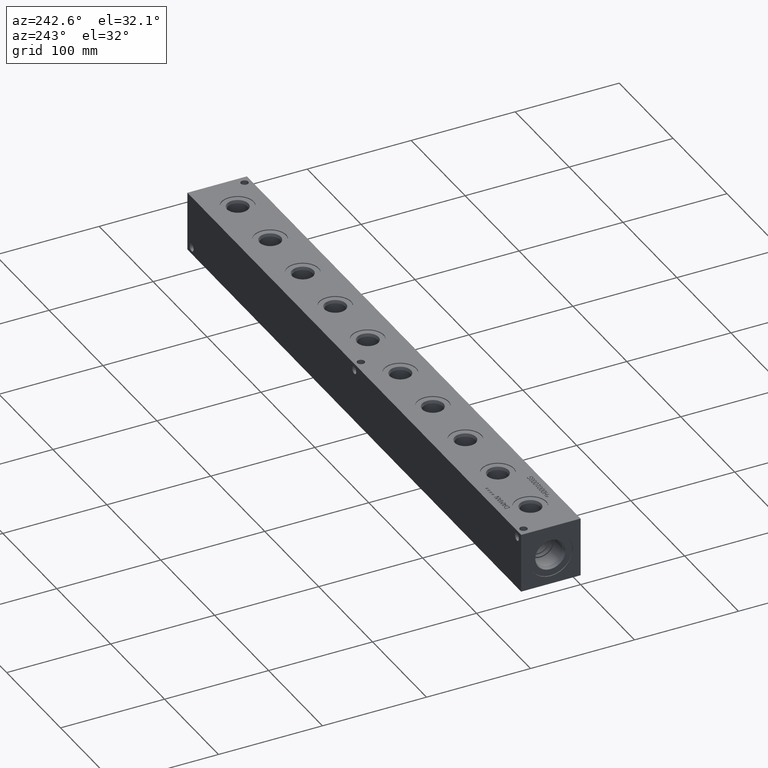
[diagram: clean part render]
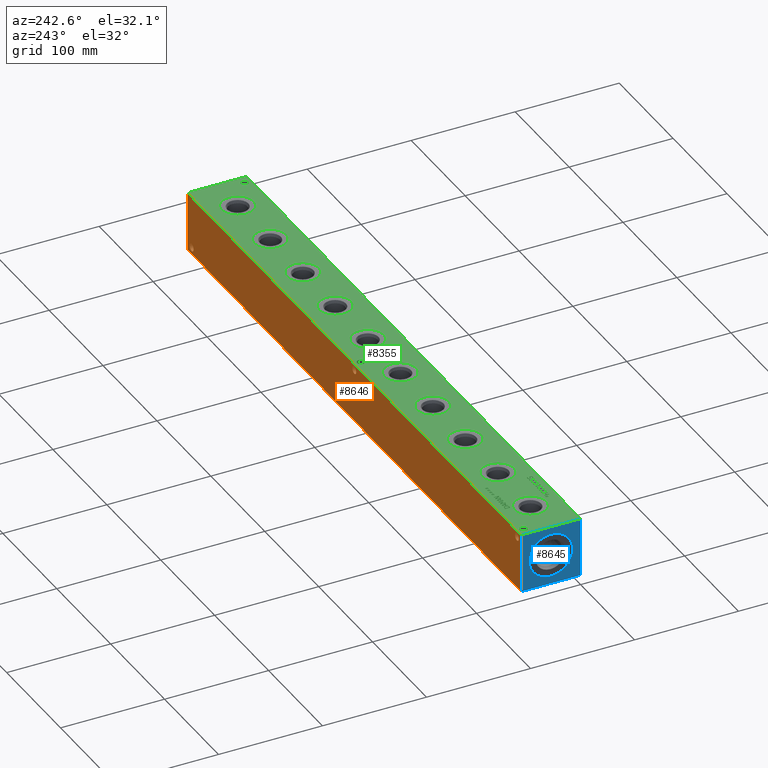
[diagram: same view with three faces highlighted in distinct colors, each labeled with its STEP entity id]
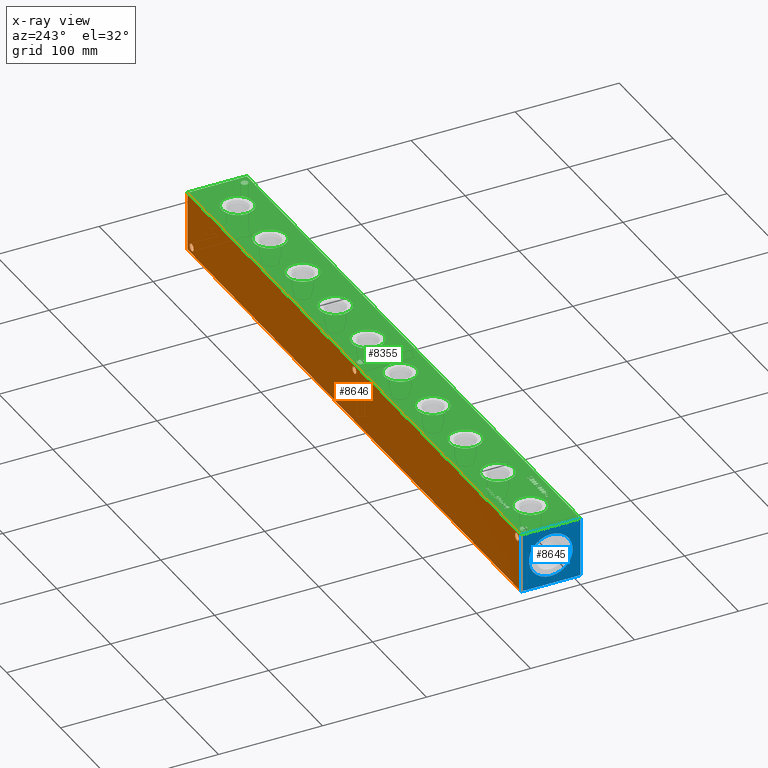
[diagram: x-ray of the same camera — body ghosted, the three highlighted faces saturated]
A machine part, auxiliary view with three faces highlighted in distinct colors.
The next image is the same camera in x-ray (body ghosted, the three faces saturated) — at least one of them is partly hidden behind the body in this view.
Their STEP definitions:

[orange] entity #8646 — the highlighted planar face has unit normal (0, 1, 0).
#170=CIRCLE('',#8897,3.5687);
#173=CIRCLE('',#8907,3.5687);
#176=CIRCLE('',#8916,3.5687);
#450=FACE_BOUND('',#1647,.T.);
#451=FACE_BOUND('',#1648,.T.);
#452=FACE_BOUND('',#1649,.T.);
#683=PLANE('',#9257);
#1131=FACE_OUTER_BOUND('',#1646,.T.);
#1646=EDGE_LOOP('',(#7773,#7774,#7775,#7776));
#1647=EDGE_LOOP('',(#7777));
#1648=EDGE_LOOP('',(#7778));
#1649=EDGE_LOOP('',(#7779));
#1897=LINE('',#13315,#2636);
#2394=LINE('',#15072,#3133);
#2395=LINE('',#15075,#3134);
#2396=LINE('',#15076,#3135);
#2636=VECTOR('',#9614,10.);
#3133=VECTOR('',#11181,10.);
#3134=VECTOR('',#11184,10.);
#3135=VECTOR('',#11185,10.);
#3643=VERTEX_POINT('',#13312);
#3644=VERTEX_POINT('',#13314);
#3937=VERTEX_POINT('',#14290);
#3942=VERTEX_POINT('',#14308);
#3947=VERTEX_POINT('',#14324);
#4172=VERTEX_POINT('',#15068);
#4174=VERTEX_POINT('',#15074);
#4604=EDGE_CURVE('',#3643,#3644,#1897,.T.);
#5033=EDGE_CURVE('',#3937,#3937,#170,.T.);
#5043=EDGE_CURVE('',#3942,#3942,#173,.T.);
#5052=EDGE_CURVE('',#3947,#3947,#176,.T.);
#5380=EDGE_CURVE('',#4172,#3644,#2394,.T.);
#5381=EDGE_CURVE('',#4174,#4172,#2395,.T.);
#5382=EDGE_CURVE('',#4174,#3643,#2396,.T.);
#7773=ORIENTED_EDGE('',*,*,#5381,.T.);
#7774=ORIENTED_EDGE('',*,*,#5380,.T.);
#7775=ORIENTED_EDGE('',*,*,#4604,.F.);
#7776=ORIENTED_EDGE('',*,*,#5382,.F.);
#7777=ORIENTED_EDGE('',*,*,#5033,.T.);
#7778=ORIENTED_EDGE('',*,*,#5043,.T.);
#7779=ORIENTED_EDGE('',*,*,#5052,.T.);
#8646=ADVANCED_FACE('',(#1131,#450,#451,#452),#683,.T.);
#8897=AXIS2_PLACEMENT_3D('',#14292,#10345,#10346);
#8907=AXIS2_PLACEMENT_3D('',#14310,#10368,#10369);
#8916=AXIS2_PLACEMENT_3D('',#14326,#10388,#10389);
#9257=AXIS2_PLACEMENT_3D('',#15073,#11182,#11183);
#9614=DIRECTION('',(-1.,0.,0.));
#10345=DIRECTION('center_axis',(0.,-1.,0.));
#10346=DIRECTION('ref_axis',(1.,0.,0.));
#10368=DIRECTION('center_axis',(0.,-1.,0.));
#10369=DIRECTION('ref_axis',(1.,0.,0.));
#10388=DIRECTION('center_axis',(0.,-1.,0.));
#10389=DIRECTION('ref_axis',(1.,0.,0.));
#11181=DIRECTION('',(0.,0.,1.));
#11182=DIRECTION('center_axis',(0.,1.,0.));
#11183=DIRECTION('ref_axis',(-1.,0.,0.));
#11184=DIRECTION('',(-1.,0.,0.));
#11185=DIRECTION('',(0.,0.,1.));
#13312=CARTESIAN_POINT('',(619.125,57.15,57.15));
#13314=CARTESIAN_POINT('',(0.,57.15,57.15));
#13315=CARTESIAN_POINT('',(619.125,57.15,57.15));
#14290=CARTESIAN_POINT('',(607.6061,57.15,6.35));
#14292=CARTESIAN_POINT('Origin',(611.1748,57.15,6.35));
#14308=CARTESIAN_POINT('',(4.3561,57.15,50.8));
#14310=CARTESIAN_POINT('Origin',(7.9248,57.15,50.8));
#14324=CARTESIAN_POINT('',(306.0065,57.15,50.8));
#14326=CARTESIAN_POINT('Origin',(309.5752,57.15,50.8));
#15068=CARTESIAN_POINT('',(0.,57.15,0.));
#15072=CARTESIAN_POINT('',(0.,57.15,0.));
#15073=CARTESIAN_POINT('Origin',(619.125,57.15,0.));
#15074=CARTESIAN_POINT('',(619.125,57.15,0.));
#15075=CARTESIAN_POINT('',(619.125,57.15,0.));
#15076=CARTESIAN_POINT('',(619.125,57.15,0.));

[blue] entity #8645 — the highlighted planar face has unit normal (-1, 0, 0).
#373=CIRCLE('',#9242,21.0185);
#374=CIRCLE('',#9243,21.0185);
#449=FACE_BOUND('',#1645,.T.);
#682=PLANE('',#9256);
#1130=FACE_OUTER_BOUND('',#1644,.T.);
#1644=EDGE_LOOP('',(#7767,#7768,#7769,#7770));
#1645=EDGE_LOOP('',(#7771,#7772));
#1898=LINE('',#13316,#2637);
#2392=LINE('',#15070,#3131);
#2393=LINE('',#15071,#3132);
#2394=LINE('',#15072,#3133);
#2637=VECTOR('',#9615,10.);
#3131=VECTOR('',#11179,10.);
#3132=VECTOR('',#11180,10.);
#3133=VECTOR('',#11181,10.);
#3641=VERTEX_POINT('',#13309);
#3644=VERTEX_POINT('',#13314);
#4162=VERTEX_POINT('',#15039);
#4163=VERTEX_POINT('',#15040);
#4172=VERTEX_POINT('',#15068);
#4173=VERTEX_POINT('',#15069);
#4605=EDGE_CURVE('',#3644,#3641,#1898,.T.);
#5364=EDGE_CURVE('',#4162,#4163,#373,.T.);
#5365=EDGE_CURVE('',#4163,#4162,#374,.T.);
#5378=EDGE_CURVE('',#4172,#4173,#2392,.T.);
#5379=EDGE_CURVE('',#4173,#3641,#2393,.T.);
#5380=EDGE_CURVE('',#4172,#3644,#2394,.T.);
#7767=ORIENTED_EDGE('',*,*,#5378,.T.);
#7768=ORIENTED_EDGE('',*,*,#5379,.T.);
#7769=ORIENTED_EDGE('',*,*,#4605,.F.);
#7770=ORIENTED_EDGE('',*,*,#5380,.F.);
#7771=ORIENTED_EDGE('',*,*,#5364,.T.);
#7772=ORIENTED_EDGE('',*,*,#5365,.T.);
#8645=ADVANCED_FACE('',(#1130,#449),#682,.T.);
#9242=AXIS2_PLACEMENT_3D('',#15041,#11145,#11146);
#9243=AXIS2_PLACEMENT_3D('',#15042,#11147,#11148);
#9256=AXIS2_PLACEMENT_3D('',#15067,#11177,#11178);
#9615=DIRECTION('',(0.,-1.,0.));
#11145=DIRECTION('center_axis',(1.,0.,0.));
#11146=DIRECTION('ref_axis',(0.,0.,1.));
#11147=DIRECTION('center_axis',(1.,0.,0.));
#11148=DIRECTION('ref_axis',(0.,0.,1.));
#11177=DIRECTION('center_axis',(-1.,0.,0.));
#11178=DIRECTION('ref_axis',(0.,-1.,0.));
#11179=DIRECTION('',(0.,-1.,0.));
#11180=DIRECTION('',(0.,0.,1.));
#11181=DIRECTION('',(0.,0.,1.));
#13309=CARTESIAN_POINT('',(0.,0.,57.15));
#13314=CARTESIAN_POINT('',(0.,57.15,57.15));
#13316=CARTESIAN_POINT('',(0.,57.15,57.15));
#15039=CARTESIAN_POINT('',(0.,28.575,49.5935));
#15040=CARTESIAN_POINT('',(0.,28.575,7.55649999999999));
#15041=CARTESIAN_POINT('Origin',(0.,28.575,28.575));
#15042=CARTESIAN_POINT('Origin',(0.,28.575,28.575));
#15067=CARTESIAN_POINT('Origin',(0.,57.15,0.));
#15068=CARTESIAN_POINT('',(0.,57.15,0.));
#15069=CARTESIAN_POINT('',(0.,0.,0.));
#15070=CARTESIAN_POINT('',(0.,57.15,0.));
#15071=CARTESIAN_POINT('',(0.,0.,0.));
#15072=CARTESIAN_POINT('',(0.,57.15,0.));

[green] entity #8355 — the highlighted planar face has unit normal (0, 0, 1).
#142=CIRCLE('',#8722,3.5687);
#143=CIRCLE('',#8723,3.5687);
#144=CIRCLE('',#8724,3.5687);
#145=CIRCLE('',#8725,3.5687);
#146=CIRCLE('',#8726,3.5687);
#147=CIRCLE('',#8727,3.5687);
#148=CIRCLE('',#8728,15.3162);
#149=CIRCLE('',#8729,15.3162);
#150=CIRCLE('',#8730,15.3162);
#151=CIRCLE('',#8731,15.3162);
#152=CIRCLE('',#8732,15.3162);
#153=CIRCLE('',#8733,15.3162);
#154=CIRCLE('',#8734,15.3162);
#155=CIRCLE('',#8735,15.3162);
#156=CIRCLE('',#8736,15.3162);
#157=CIRCLE('',#8737,15.3162);
#158=CIRCLE('',#8738,15.3162);
#159=CIRCLE('',#8739,15.3162);
#160=CIRCLE('',#8740,15.3162);
#161=CIRCLE('',#8741,15.3162);
#162=CIRCLE('',#8742,15.3162);
#163=CIRCLE('',#8743,15.3162);
#164=CIRCLE('',#8744,15.3162);
#165=CIRCLE('',#8745,15.3162);
#166=CIRCLE('',#8746,15.3162);
#167=CIRCLE('',#8747,15.3162);
#390=FACE_BOUND('',#1296,.T.);
#391=FACE_BOUND('',#1297,.T.);
#392=FACE_BOUND('',#1298,.T.);
#393=FACE_BOUND('',#1299,.T.);
#394=FACE_BOUND('',#1300,.T.);
#395=FACE_BOUND('',#1301,.T.);
#396=FACE_BOUND('',#1302,.T.);
#397=FACE_BOUND('',#1303,.T.);
#398=FACE_BOUND('',#1304,.T.);
#399=FACE_BOUND('',#1305,.T.);
#400=FACE_BOUND('',#1306,.T.);
#401=FACE_BOUND('',#1307,.T.);
#402=FACE_BOUND('',#1308,.T.);
#403=FACE_BOUND('',#1309,.T.);
#404=FACE_BOUND('',#1310,.T.);
#405=FACE_BOUND('',#1311,.T.);
#406=FACE_BOUND('',#1312,.T.);
#407=FACE_BOUND('',#1313,.T.);
#408=FACE_BOUND('',#1314,.T.);
#409=FACE_BOUND('',#1315,.T.);
#410=FACE_BOUND('',#1316,.T.);
#411=FACE_BOUND('',#1317,.T.);
#412=FACE_BOUND('',#1318,.T.);
#413=FACE_BOUND('',#1319,.T.);
#414=FACE_BOUND('',#1320,.T.);
#415=FACE_BOUND('',#1321,.T.);
#416=FACE_BOUND('',#1322,.T.);
#417=FACE_BOUND('',#1323,.T.);
#418=FACE_BOUND('',#1324,.T.);
#419=FACE_BOUND('',#1325,.T.);
#420=FACE_BOUND('',#1326,.T.);
#421=FACE_BOUND('',#1327,.T.);
#516=PLANE('',#8721);
#840=FACE_OUTER_BOUND('',#1295,.T.);
#1295=EDGE_LOOP('',(#6096,#6097,#6098,#6099));
#1296=EDGE_LOOP('',(#6100,#6101,#6102,#6103,#6104,#6105,#6106,#6107,#6108,
#6109,#6110,#6111,#6112,#6113,#6114,#6115,#6116,#6117));
#1297=EDGE_LOOP('',(#6118,#6119,#6120,#6121,#6122,#6123,#6124,#6125,#6126,
#6127,#6128,#6129,#6130,#6131,#6132,#6133,#6134,#6135));
#1298=EDGE_LOOP('',(#6136,#6137,#6138,#6139,#6140,#6141,#6142,#6143,#6144,
#6145,#6146,#6147,#6148));
#1299=EDGE_LOOP('',(#6149,#6150,#6151,#6152,#6153,#6154,#6155,#6156));
#1300=EDGE_LOOP('',(#6157,#6158,#6159,#6160,#6161,#6162,#6163));
#1301=EDGE_LOOP('',(#6164,#6165,#6166,#6167,#6168,#6169,#6170,#6171));
#1302=EDGE_LOOP('',(#6172,#6173,#6174,#6175,#6176,#6177,#6178,#6179,#6180,
#6181));
#1303=EDGE_LOOP('',(#6182,#6183,#6184,#6185,#6186,#6187,#6188,#6189,#6190,
#6191,#6192,#6193,#6194,#6195,#6196,#6197,#6198,#6199));
#1304=EDGE_LOOP('',(#6200,#6201,#6202,#6203,#6204,#6205,#6206,#6207,#6208,
#6209,#6210,#6211,#6212,#6213,#6214,#6215,#6216,#6217));
#1305=EDGE_LOOP('',(#6218,#6219));
#1306=EDGE_LOOP('',(#6220,#6221));
#1307=EDGE_LOOP('',(#6222,#6223));
#1308=EDGE_LOOP('',(#6224,#6225));
#1309=EDGE_LOOP('',(#6226,#6227));
#1310=EDGE_LOOP('',(#6228,#6229));
#1311=EDGE_LOOP('',(#6230,#6231));
#1312=EDGE_LOOP('',(#6232,#6233));
#1313=EDGE_LOOP('',(#6234,#6235));
#1314=EDGE_LOOP('',(#6236,#6237));
#1315=EDGE_LOOP('',(#6238,#6239));
#1316=EDGE_LOOP('',(#6240,#6241));
#1317=EDGE_LOOP('',(#6242,#6243));
#1318=EDGE_LOOP('',(#6244,#6245,#6246,#6247,#6248,#6249,#6250,#6251,#6252,
#6253,#6254,#6255,#6256,#6257,#6258,#6259,#6260,#6261,#6262,#6263));
#1319=EDGE_LOOP('',(#6264,#6265,#6266,#6267,#6268,#6269,#6270,#6271,#6272,
#6273,#6274));
#1320=EDGE_LOOP('',(#6275,#6276,#6277,#6278));
#1321=EDGE_LOOP('',(#6279,#6280,#6281,#6282));
#1322=EDGE_LOOP('',(#6283,#6284,#6285,#6286));
#1323=EDGE_LOOP('',(#6287,#6288,#6289,#6290,#6291,#6292,#6293,#6294,#6295,
#6296,#6297,#6298,#6299,#6300,#6301,#6302,#6303,#6304));
#1324=EDGE_LOOP('',(#6305,#6306,#6307,#6308,#6309,#6310,#6311,#6312,#6313,
#6314,#6315,#6316));
#1325=EDGE_LOOP('',(#6317,#6318,#6319,#6320));
#1326=EDGE_LOOP('',(#6321,#6322,#6323,#6324));
#1327=EDGE_LOOP('',(#6325,#6326,#6327,#6328,#6329,#6330,#6331,#6332,#6333,
#6334,#6335));
#1674=LINE('',#11431,#2413);
#1681=LINE('',#11513,#2420);
#1710=LINE('',#12033,#2449);
#1714=LINE('',#12041,#2453);
#1717=LINE('',#12047,#2456);
#1720=LINE('',#12053,#2459);
#1723=LINE('',#12059,#2462);
#1726=LINE('',#12065,#2465);
#1729=LINE('',#12071,#2468);
#1732=LINE('',#12077,#2471);
#1735=LINE('',#12083,#2474);
#1738=LINE('',#12089,#2477);
#1741=LINE('',#12095,#2480);
#1744=LINE('',#12100,#2483);
#1746=LINE('',#12106,#2485);
#1750=LINE('',#12114,#2489);
#1753=LINE('',#12120,#2492);
#1756=LINE('',#12126,#2495);
#1759=LINE('',#12132,#2498);
#1762=LINE('',#12138,#2501);
#1765=LINE('',#12144,#2504);
#1768=LINE('',#12150,#2507);
#1771=LINE('',#12156,#2510);
#1774=LINE('',#12162,#2513);
#1777=LINE('',#12168,#2516);
#1780=LINE('',#12174,#2519);
#1783=LINE('',#12180,#2522);
#1786=LINE('',#12186,#2525);
#1789=LINE('',#12192,#2528);
#1792=LINE('',#12198,#2531);
#1795=LINE('',#12204,#2534);
#1798=LINE('',#12209,#2537);
#1836=LINE('',#12902,#2575);
#1840=LINE('',#12910,#2579);
#1843=LINE('',#12916,#2582);
#1846=LINE('',#12922,#2585);
#1850=LINE('',#12947,#2589);
#1853=LINE('',#12953,#2592);
#1856=LINE('',#12959,#2595);
#1859=LINE('',#12965,#2598);
#1862=LINE('',#12971,#2601);
#1865=LINE('',#12976,#2604);
#1875=LINE('',#13117,#2614);
#1878=LINE('',#13123,#2617);
#1889=LINE('',#13281,#2628);
#1892=LINE('',#13287,#2631);
#1895=LINE('',#13311,#2634);
#1896=LINE('',#13313,#2635);
#1897=LINE('',#13315,#2636);
#1898=LINE('',#13316,#2637);
#1899=LINE('',#13319,#2638);
#1900=LINE('',#13321,#2639);
#1901=LINE('',#13323,#2640);
#1902=LINE('',#13325,#2641);
#1903=LINE('',#13327,#2642);
#1904=LINE('',#13329,#2643);
#1905=LINE('',#13331,#2644);
#1906=LINE('',#13333,#2645);
#1907=LINE('',#13335,#2646);
#1908=LINE('',#13337,#2647);
#1909=LINE('',#13339,#2648);
#1910=LINE('',#13341,#2649);
#1911=LINE('',#13343,#2650);
#1912=LINE('',#13345,#2651);
#1913=LINE('',#13347,#2652);
#1914=LINE('',#13349,#2653);
#1915=LINE('',#13351,#2654);
#1916=LINE('',#13352,#2655);
#1917=LINE('',#13355,#2656);
#1918=LINE('',#13357,#2657);
#1919=LINE('',#13359,#2658);
#1920=LINE('',#13361,#2659);
#1921=LINE('',#13363,#2660);
#1922=LINE('',#13365,#2661);
#1923=LINE('',#13367,#2662);
#1924=LINE('',#13369,#2663);
#1925=LINE('',#13371,#2664);
#1926=LINE('',#13373,#2665);
#1927=LINE('',#13375,#2666);
#1928=LINE('',#13377,#2667);
#1929=LINE('',#13379,#2668);
#1930=LINE('',#13381,#2669);
#1931=LINE('',#13383,#2670);
#1932=LINE('',#13385,#2671);
#1933=LINE('',#13387,#2672);
#1934=LINE('',#13388,#2673);
#1935=LINE('',#13391,#2674);
#1936=LINE('',#13393,#2675);
#1937=LINE('',#13395,#2676);
#1938=LINE('',#13397,#2677);
#1939=LINE('',#13399,#2678);
#1940=LINE('',#13401,#2679);
#1941=LINE('',#13403,#2680);
#1942=LINE('',#13405,#2681);
#1943=LINE('',#13407,#2682);
#1944=LINE('',#13409,#2683);
#1945=LINE('',#13411,#2684);
#1946=LINE('',#13413,#2685);
#1947=LINE('',#13414,#2686);
#1948=LINE('',#13417,#2687);
#1949=LINE('',#13419,#2688);
#1950=LINE('',#13421,#2689);
#1951=LINE('',#13423,#2690);
#1952=LINE('',#13425,#2691);
#1953=LINE('',#13427,#2692);
#1954=LINE('',#13429,#2693);
#1955=LINE('',#13430,#2694);
#1956=LINE('',#13448,#2695);
#1957=LINE('',#13450,#2696);
#1958=LINE('',#13452,#2697);
#1959=LINE('',#13459,#2698);
#1960=LINE('',#13461,#2699);
#1961=LINE('',#13463,#2700);
#1962=LINE('',#13465,#2701);
#1963=LINE('',#13467,#2702);
#1964=LINE('',#13469,#2703);
#1965=LINE('',#13471,#2704);
#1966=LINE('',#13472,#2705);
#1967=LINE('',#13475,#2706);
#1968=LINE('',#13477,#2707);
#1969=LINE('',#13479,#2708);
#1970=LINE('',#13481,#2709);
#1971=LINE('',#13483,#2710);
#1972=LINE('',#13485,#2711);
#1973=LINE('',#13487,#2712);
#1974=LINE('',#13489,#2713);
#1975=LINE('',#13491,#2714);
#1976=LINE('',#13492,#2715);
#1977=LINE('',#13495,#2716);
#1978=LINE('',#13497,#2717);
#1979=LINE('',#13499,#2718);
#1980=LINE('',#13501,#2719);
#1981=LINE('',#13503,#2720);
#1982=LINE('',#13505,#2721);
#1983=LINE('',#13507,#2722);
#1984=LINE('',#13509,#2723);
#1985=LINE('',#13511,#2724);
#1986=LINE('',#13513,#2725);
#1987=LINE('',#13515,#2726);
#1988=LINE('',#13517,#2727);
#1989=LINE('',#13519,#2728);
#1990=LINE('',#13521,#2729);
#1991=LINE('',#13523,#2730);
#1992=LINE('',#13525,#2731);
#1993=LINE('',#13527,#2732);
#1994=LINE('',#13528,#2733);
#1995=LINE('',#13531,#2734);
#1996=LINE('',#13533,#2735);
#1997=LINE('',#13535,#2736);
#1998=LINE('',#13537,#2737);
#1999=LINE('',#13539,#2738);
#2000=LINE('',#13541,#2739);
#2001=LINE('',#13543,#2740);
#2002=LINE('',#13545,#2741);
#2003=LINE('',#13547,#2742);
#2004=LINE('',#13549,#2743);
#2005=LINE('',#13551,#2744);
#2006=LINE('',#13553,#2745);
#2007=LINE('',#13555,#2746);
#2008=LINE('',#13557,#2747);
#2009=LINE('',#13559,#2748);
#2010=LINE('',#13561,#2749);
#2011=LINE('',#13563,#2750);
#2012=LINE('',#13564,#2751);
#2413=VECTOR('',#9279,10.);
#2420=VECTOR('',#9288,10.);
#2449=VECTOR('',#9325,10.);
#2453=VECTOR('',#9331,10.);
#2456=VECTOR('',#9336,10.);
#2459=VECTOR('',#9341,10.);
#2462=VECTOR('',#9346,10.);
#2465=VECTOR('',#9351,10.);
#2468=VECTOR('',#9356,10.);
#2471=VECTOR('',#9361,10.);
#2474=VECTOR('',#9366,10.);
#2477=VECTOR('',#9371,10.);
#2480=VECTOR('',#9376,10.);
#2483=VECTOR('',#9381,10.);
#2485=VECTOR('',#9387,10.);
#2489=VECTOR('',#9393,10.);
#2492=VECTOR('',#9398,10.);
#2495=VECTOR('',#9403,10.);
#2498=VECTOR('',#9408,10.);
#2501=VECTOR('',#9413,10.);
#2504=VECTOR('',#9418,10.);
#2507=VECTOR('',#9423,10.);
#2510=VECTOR('',#9428,10.);
#2513=VECTOR('',#9433,10.);
#2516=VECTOR('',#9438,10.);
#2519=VECTOR('',#9443,10.);
#2522=VECTOR('',#9448,10.);
#2525=VECTOR('',#9453,10.);
#2528=VECTOR('',#9458,10.);
#2531=VECTOR('',#9463,10.);
#2534=VECTOR('',#9468,10.);
#2537=VECTOR('',#9473,10.);
#2575=VECTOR('',#9521,10.);
#2579=VECTOR('',#9527,10.);
#2582=VECTOR('',#9532,10.);
#2585=VECTOR('',#9537,10.);
#2589=VECTOR('',#9543,10.);
#2592=VECTOR('',#9548,10.);
#2595=VECTOR('',#9553,10.);
#2598=VECTOR('',#9558,10.);
#2601=VECTOR('',#9563,10.);
#2604=VECTOR('',#9568,10.);
#2614=VECTOR('',#9582,10.);
#2617=VECTOR('',#9587,10.);
#2628=VECTOR('',#9600,10.);
#2631=VECTOR('',#9605,10.);
#2634=VECTOR('',#9612,10.);
#2635=VECTOR('',#9613,10.);
#2636=VECTOR('',#9614,10.);
#2637=VECTOR('',#9615,10.);
#2638=VECTOR('',#9616,10.);
#2639=VECTOR('',#9617,10.);
#2640=VECTOR('',#9618,10.);
#2641=VECTOR('',#9619,10.);
#2642=VECTOR('',#9620,10.);
#2643=VECTOR('',#9621,10.);
#2644=VECTOR('',#9622,10.);
#2645=VECTOR('',#9623,10.);
#2646=VECTOR('',#9624,10.);
#2647=VECTOR('',#9625,10.);
#2648=VECTOR('',#9626,10.);
#2649=VECTOR('',#9627,10.);
#2650=VECTOR('',#9628,10.);
#2651=VECTOR('',#9629,10.);
#2652=VECTOR('',#9630,10.);
#2653=VECTOR('',#9631,10.);
#2654=VECTOR('',#9632,10.);
#2655=VECTOR('',#9633,10.);
#2656=VECTOR('',#9634,10.);
#2657=VECTOR('',#9635,10.);
#2658=VECTOR('',#9636,10.);
#2659=VECTOR('',#9637,10.);
#2660=VECTOR('',#9638,10.);
#2661=VECTOR('',#9639,10.);
#2662=VECTOR('',#9640,10.);
#2663=VECTOR('',#9641,10.);
#2664=VECTOR('',#9642,10.);
#2665=VECTOR('',#9643,10.);
#2666=VECTOR('',#9644,10.);
#2667=VECTOR('',#9645,10.);
#2668=VECTOR('',#9646,10.);
#2669=VECTOR('',#9647,10.);
#2670=VECTOR('',#9648,10.);
#2671=VECTOR('',#9649,10.);
#2672=VECTOR('',#9650,10.);
#2673=VECTOR('',#9651,10.);
#2674=VECTOR('',#9652,10.);
#2675=VECTOR('',#9653,10.);
#2676=VECTOR('',#9654,10.);
#2677=VECTOR('',#9655,10.);
#2678=VECTOR('',#9656,10.);
#2679=VECTOR('',#9657,10.);
#2680=VECTOR('',#9658,10.);
#2681=VECTOR('',#9659,10.);
#2682=VECTOR('',#9660,10.);
#2683=VECTOR('',#9661,10.);
#2684=VECTOR('',#9662,10.);
#2685=VECTOR('',#9663,10.);
#2686=VECTOR('',#9664,10.);
#2687=VECTOR('',#9665,10.);
#2688=VECTOR('',#9666,10.);
#2689=VECTOR('',#9667,10.);
#2690=VECTOR('',#9668,10.);
#2691=VECTOR('',#9669,10.);
#2692=VECTOR('',#9670,10.);
#2693=VECTOR('',#9671,10.);
#2694=VECTOR('',#9672,10.);
#2695=VECTOR('',#9673,10.);
#2696=VECTOR('',#9674,10.);
#2697=VECTOR('',#9675,10.);
#2698=VECTOR('',#9676,10.);
#2699=VECTOR('',#9677,10.);
#2700=VECTOR('',#9678,10.);
#2701=VECTOR('',#9679,10.);
#2702=VECTOR('',#9680,10.);
#2703=VECTOR('',#9681,10.);
#2704=VECTOR('',#9682,10.);
#2705=VECTOR('',#9683,10.);
#2706=VECTOR('',#9684,10.);
#2707=VECTOR('',#9685,10.);
#2708=VECTOR('',#9686,10.);
#2709=VECTOR('',#9687,10.);
#2710=VECTOR('',#9688,10.);
#2711=VECTOR('',#9689,10.);
#2712=VECTOR('',#9690,10.);
#2713=VECTOR('',#9691,10.);
#2714=VECTOR('',#9692,10.);
#2715=VECTOR('',#9693,10.);
#2716=VECTOR('',#9694,10.);
#2717=VECTOR('',#9695,10.);
#2718=VECTOR('',#9696,10.);
#2719=VECTOR('',#9697,10.);
#2720=VECTOR('',#9698,10.);
#2721=VECTOR('',#9699,10.);
#2722=VECTOR('',#9700,10.);
#2723=VECTOR('',#9701,10.);
#2724=VECTOR('',#9702,10.);
#2725=VECTOR('',#9703,10.);
#2726=VECTOR('',#9704,10.);
#2727=VECTOR('',#9705,10.);
#2728=VECTOR('',#9706,10.);
#2729=VECTOR('',#9707,10.);
#2730=VECTOR('',#9708,10.);
#2731=VECTOR('',#9709,10.);
#2732=VECTOR('',#9710,10.);
#2733=VECTOR('',#9711,10.);
#2734=VECTOR('',#9712,10.);
#2735=VECTOR('',#9713,10.);
#2736=VECTOR('',#9714,10.);
#2737=VECTOR('',#9715,10.);
#2738=VECTOR('',#9716,10.);
#2739=VECTOR('',#9717,10.);
#2740=VECTOR('',#9718,10.);
#2741=VECTOR('',#9719,10.);
#2742=VECTOR('',#9720,10.);
#2743=VECTOR('',#9721,10.);
#2744=VECTOR('',#9722,10.);
#2745=VECTOR('',#9723,10.);
#2746=VECTOR('',#9724,10.);
#2747=VECTOR('',#9725,10.);
#2748=VECTOR('',#9726,10.);
#2749=VECTOR('',#9727,10.);
#2750=VECTOR('',#9728,10.);
#2751=VECTOR('',#9729,10.);
#3159=B_SPLINE_CURVE_WITH_KNOTS('',2,(#11398,#11399,#11400,#11401),
 .UNSPECIFIED.,.F.,.F.,(3,1,3),(0.,1.,2.),.UNSPECIFIED.);
#3161=B_SPLINE_CURVE_WITH_KNOTS('',2,(#11419,#11420,#11421,#11422),
 .UNSPECIFIED.,.F.,.F.,(3,1,3),(0.,1.,2.),.UNSPECIFIED.);
#3163=B_SPLINE_CURVE_WITH_KNOTS('',2,(#11444,#11445,#11446,#11447),
 .UNSPECIFIED.,.F.,.F.,(3,1,3),(0.,1.,2.),.UNSPECIFIED.);
#3165=B_SPLINE_CURVE_WITH_KNOTS('',2,(#11463,#11464,#11465,#11466),
 .UNSPECIFIED.,.F.,.F.,(3,1,3),(0.,1.,2.),.UNSPECIFIED.);
#3167=B_SPLINE_CURVE_WITH_KNOTS('',2,(#11482,#11483,#11484,#11485),
 .UNSPECIFIED.,.F.,.F.,(3,1,3),(0.,1.,2.),.UNSPECIFIED.);
#3169=B_SPLINE_CURVE_WITH_KNOTS('',2,(#11501,#11502,#11503,#11504),
 .UNSPECIFIED.,.F.,.F.,(3,1,3),(0.,1.,2.),.UNSPECIFIED.);
#3171=B_SPLINE_CURVE_WITH_KNOTS('',2,(#11526,#11527,#11528,#11529),
 .UNSPECIFIED.,.F.,.F.,(3,1,3),(0.,1.,2.),.UNSPECIFIED.);
#3173=B_SPLINE_CURVE_WITH_KNOTS('',2,(#11545,#11546,#11547,#11548),
 .UNSPECIFIED.,.F.,.F.,(3,1,3),(0.,1.,2.),.UNSPECIFIED.);
#3175=B_SPLINE_CURVE_WITH_KNOTS('',2,(#11563,#11564,#11565,#11566),
 .UNSPECIFIED.,.F.,.F.,(3,1,3),(0.,1.,2.),.UNSPECIFIED.);
#3193=B_SPLINE_CURVE_WITH_KNOTS('',2,(#11734,#11735,#11736,#11737),
 .UNSPECIFIED.,.F.,.F.,(3,1,3),(0.,1.,2.),.UNSPECIFIED.);
#3195=B_SPLINE_CURVE_WITH_KNOTS('',2,(#11755,#11756,#11757,#11758),
 .UNSPECIFIED.,.F.,.F.,(3,1,3),(0.,1.,2.),.UNSPECIFIED.);
#3197=B_SPLINE_CURVE_WITH_KNOTS('',2,(#11774,#11775,#11776,#11777),
 .UNSPECIFIED.,.F.,.F.,(3,1,3),(0.,1.,2.),.UNSPECIFIED.);
#3199=B_SPLINE_CURVE_WITH_KNOTS('',2,(#11792,#11793,#11794,#11795),
 .UNSPECIFIED.,.F.,.F.,(3,1,3),(0.,1.,2.),.UNSPECIFIED.);
#3217=B_SPLINE_CURVE_WITH_KNOTS('',2,(#11963,#11964,#11965,#11966),
 .UNSPECIFIED.,.F.,.F.,(3,1,3),(0.,1.,2.),.UNSPECIFIED.);
#3219=B_SPLINE_CURVE_WITH_KNOTS('',2,(#11984,#11985,#11986,#11987),
 .UNSPECIFIED.,.F.,.F.,(3,1,3),(0.,1.,2.),.UNSPECIFIED.);
#3221=B_SPLINE_CURVE_WITH_KNOTS('',2,(#12003,#12004,#12005,#12006),
 .UNSPECIFIED.,.F.,.F.,(3,1,3),(0.,1.,2.),.UNSPECIFIED.);
#3223=B_SPLINE_CURVE_WITH_KNOTS('',2,(#12021,#12022,#12023,#12024),
 .UNSPECIFIED.,.F.,.F.,(3,1,3),(0.,1.,2.),.UNSPECIFIED.);
#3241=B_SPLINE_CURVE_WITH_KNOTS('',2,(#12374,#12375,#12376,#12377),
 .UNSPECIFIED.,.F.,.F.,(3,1,3),(0.,1.,2.),.UNSPECIFIED.);
#3243=B_SPLINE_CURVE_WITH_KNOTS('',2,(#12395,#12396,#12397,#12398),
 .UNSPECIFIED.,.F.,.F.,(3,1,3),(0.,1.,2.),.UNSPECIFIED.);
#3245=B_SPLINE_CURVE_WITH_KNOTS('',2,(#12414,#12415,#12416,#12417),
 .UNSPECIFIED.,.F.,.F.,(3,1,3),(0.,1.,2.),.UNSPECIFIED.);
#3247=B_SPLINE_CURVE_WITH_KNOTS('',2,(#12432,#12433,#12434,#12435),
 .UNSPECIFIED.,.F.,.F.,(3,1,3),(0.,1.,2.),.UNSPECIFIED.);
#3265=B_SPLINE_CURVE_WITH_KNOTS('',2,(#12603,#12604,#12605,#12606),
 .UNSPECIFIED.,.F.,.F.,(3,1,3),(0.,1.,2.),.UNSPECIFIED.);
#3267=B_SPLINE_CURVE_WITH_KNOTS('',2,(#12624,#12625,#12626,#12627),
 .UNSPECIFIED.,.F.,.F.,(3,1,3),(0.,1.,2.),.UNSPECIFIED.);
#3269=B_SPLINE_CURVE_WITH_KNOTS('',2,(#12643,#12644,#12645,#12646),
 .UNSPECIFIED.,.F.,.F.,(3,1,3),(0.,1.,2.),.UNSPECIFIED.);
#3271=B_SPLINE_CURVE_WITH_KNOTS('',2,(#12661,#12662,#12663,#12664),
 .UNSPECIFIED.,.F.,.F.,(3,1,3),(0.,1.,2.),.UNSPECIFIED.);
#3289=B_SPLINE_CURVE_WITH_KNOTS('',2,(#12832,#12833,#12834,#12835),
 .UNSPECIFIED.,.F.,.F.,(3,1,3),(0.,1.,2.),.UNSPECIFIED.);
#3291=B_SPLINE_CURVE_WITH_KNOTS('',2,(#12853,#12854,#12855,#12856),
 .UNSPECIFIED.,.F.,.F.,(3,1,3),(0.,1.,2.),.UNSPECIFIED.);
#3293=B_SPLINE_CURVE_WITH_KNOTS('',2,(#12872,#12873,#12874,#12875),
 .UNSPECIFIED.,.F.,.F.,(3,1,3),(0.,1.,2.),.UNSPECIFIED.);
#3295=B_SPLINE_CURVE_WITH_KNOTS('',2,(#12890,#12891,#12892,#12893),
 .UNSPECIFIED.,.F.,.F.,(3,1,3),(0.,1.,2.),.UNSPECIFIED.);
#3297=B_SPLINE_CURVE_WITH_KNOTS('',2,(#12935,#12936,#12937,#12938),
 .UNSPECIFIED.,.F.,.F.,(3,1,3),(0.,1.,2.),.UNSPECIFIED.);
#3299=B_SPLINE_CURVE_WITH_KNOTS('',2,(#12989,#12990,#12991,#12992),
 .UNSPECIFIED.,.F.,.F.,(3,1,3),(0.,1.,2.),.UNSPECIFIED.);
#3301=B_SPLINE_CURVE_WITH_KNOTS('',2,(#13010,#13011,#13012,#13013),
 .UNSPECIFIED.,.F.,.F.,(3,1,3),(0.,1.,2.),.UNSPECIFIED.);
#3303=B_SPLINE_CURVE_WITH_KNOTS('',2,(#13029,#13030,#13031,#13032),
 .UNSPECIFIED.,.F.,.F.,(3,1,3),(0.,1.,2.),.UNSPECIFIED.);
#3305=B_SPLINE_CURVE_WITH_KNOTS('',2,(#13048,#13049,#13050,#13051),
 .UNSPECIFIED.,.F.,.F.,(3,1,3),(0.,1.,2.),.UNSPECIFIED.);
#3307=B_SPLINE_CURVE_WITH_KNOTS('',2,(#13067,#13068,#13069,#13070),
 .UNSPECIFIED.,.F.,.F.,(3,1,3),(0.,1.,2.),.UNSPECIFIED.);
#3309=B_SPLINE_CURVE_WITH_KNOTS('',2,(#13086,#13087,#13088,#13089),
 .UNSPECIFIED.,.F.,.F.,(3,1,3),(0.,1.,2.),.UNSPECIFIED.);
#3311=B_SPLINE_CURVE_WITH_KNOTS('',2,(#13105,#13106,#13107,#13108),
 .UNSPECIFIED.,.F.,.F.,(3,1,3),(0.,1.,2.),.UNSPECIFIED.);
#3313=B_SPLINE_CURVE_WITH_KNOTS('',2,(#13136,#13137,#13138,#13139),
 .UNSPECIFIED.,.F.,.F.,(3,1,3),(0.,1.,2.),.UNSPECIFIED.);
#3315=B_SPLINE_CURVE_WITH_KNOTS('',2,(#13155,#13156,#13157,#13158),
 .UNSPECIFIED.,.F.,.F.,(3,1,3),(0.,1.,2.),.UNSPECIFIED.);
#3317=B_SPLINE_CURVE_WITH_KNOTS('',2,(#13174,#13175,#13176,#13177),
 .UNSPECIFIED.,.F.,.F.,(3,1,3),(0.,1.,2.),.UNSPECIFIED.);
#3319=B_SPLINE_CURVE_WITH_KNOTS('',2,(#13193,#13194,#13195,#13196),
 .UNSPECIFIED.,.F.,.F.,(3,1,3),(0.,1.,2.),.UNSPECIFIED.);
#3321=B_SPLINE_CURVE_WITH_KNOTS('',2,(#13212,#13213,#13214,#13215),
 .UNSPECIFIED.,.F.,.F.,(3,1,3),(0.,1.,2.),.UNSPECIFIED.);
#3323=B_SPLINE_CURVE_WITH_KNOTS('',2,(#13231,#13232,#13233,#13234),
 .UNSPECIFIED.,.F.,.F.,(3,1,3),(0.,1.,2.),.UNSPECIFIED.);
#3325=B_SPLINE_CURVE_WITH_KNOTS('',2,(#13250,#13251,#13252,#13253),
 .UNSPECIFIED.,.F.,.F.,(3,1,3),(0.,1.,2.),.UNSPECIFIED.);
#3327=B_SPLINE_CURVE_WITH_KNOTS('',2,(#13269,#13270,#13271,#13272),
 .UNSPECIFIED.,.F.,.F.,(3,1,3),(0.,1.,2.),.UNSPECIFIED.);
#3329=B_SPLINE_CURVE_WITH_KNOTS('',2,(#13299,#13300,#13301,#13302),
 .UNSPECIFIED.,.F.,.F.,(3,1,3),(0.,1.,2.),.UNSPECIFIED.);
#3331=B_SPLINE_CURVE_WITH_KNOTS('',2,(#13433,#13434,#13435,#13436),
 .UNSPECIFIED.,.F.,.F.,(3,1,3),(0.,1.,2.),.UNSPECIFIED.);
#3332=B_SPLINE_CURVE_WITH_KNOTS('',2,(#13438,#13439,#13440,#13441),
 .UNSPECIFIED.,.F.,.F.,(3,1,3),(0.,1.,2.),.UNSPECIFIED.);
#3333=B_SPLINE_CURVE_WITH_KNOTS('',2,(#13443,#13444,#13445,#13446),
 .UNSPECIFIED.,.F.,.F.,(3,1,3),(0.,1.,2.),.UNSPECIFIED.);
#3334=B_SPLINE_CURVE_WITH_KNOTS('',2,(#13453,#13454,#13455,#13456),
 .UNSPECIFIED.,.F.,.F.,(3,1,3),(0.,1.,2.),.UNSPECIFIED.);
#3377=VERTEX_POINT('',#11396);
#3378=VERTEX_POINT('',#11397);
#3381=VERTEX_POINT('',#11418);
#3383=VERTEX_POINT('',#11430);
#3385=VERTEX_POINT('',#11443);
#3387=VERTEX_POINT('',#11462);
#3389=VERTEX_POINT('',#11481);
#3391=VERTEX_POINT('',#11500);
#3393=VERTEX_POINT('',#11512);
#3395=VERTEX_POINT('',#11525);
#3397=VERTEX_POINT('',#11544);
#3415=VERTEX_POINT('',#11732);
#3416=VERTEX_POINT('',#11733);
#3419=VERTEX_POINT('',#11754);
#3421=VERTEX_POINT('',#11773);
#3439=VERTEX_POINT('',#11961);
#3440=VERTEX_POINT('',#11962);
#3443=VERTEX_POINT('',#11983);
#3445=VERTEX_POINT('',#12002);
#3447=VERTEX_POINT('',#12031);
#3448=VERTEX_POINT('',#12032);
#3451=VERTEX_POINT('',#12040);
#3453=VERTEX_POINT('',#12046);
#3455=VERTEX_POINT('',#12052);
#3457=VERTEX_POINT('',#12058);
#3459=VERTEX_POINT('',#12064);
#3461=VERTEX_POINT('',#12070);
#3463=VERTEX_POINT('',#12076);
#3465=VERTEX_POINT('',#12082);
#3467=VERTEX_POINT('',#12088);
#3469=VERTEX_POINT('',#12094);
#3471=VERTEX_POINT('',#12104);
#3472=VERTEX_POINT('',#12105);
#3475=VERTEX_POINT('',#12113);
#3477=VERTEX_POINT('',#12119);
#3479=VERTEX_POINT('',#12125);
#3481=VERTEX_POINT('',#12131);
#3483=VERTEX_POINT('',#12137);
#3485=VERTEX_POINT('',#12143);
#3487=VERTEX_POINT('',#12149);
#3489=VERTEX_POINT('',#12155);
#3491=VERTEX_POINT('',#12161);
#3493=VERTEX_POINT('',#12167);
#3495=VERTEX_POINT('',#12173);
#3497=VERTEX_POINT('',#12179);
#3499=VERTEX_POINT('',#12185);
#3501=VERTEX_POINT('',#12191);
#3503=VERTEX_POINT('',#12197);
#3505=VERTEX_POINT('',#12203);
#3523=VERTEX_POINT('',#12372);
#3524=VERTEX_POINT('',#12373);
#3527=VERTEX_POINT('',#12394);
#3529=VERTEX_POINT('',#12413);
#3547=VERTEX_POINT('',#12601);
#3548=VERTEX_POINT('',#12602);
#3551=VERTEX_POINT('',#12623);
#3553=VERTEX_POINT('',#12642);
#3571=VERTEX_POINT('',#12830);
#3572=VERTEX_POINT('',#12831);
#3575=VERTEX_POINT('',#12852);
#3577=VERTEX_POINT('',#12871);
#3579=VERTEX_POINT('',#12900);
#3580=VERTEX_POINT('',#12901);
#3583=VERTEX_POINT('',#12909);
#3585=VERTEX_POINT('',#12915);
#3587=VERTEX_POINT('',#12921);
#3589=VERTEX_POINT('',#12934);
#3591=VERTEX_POINT('',#12946);
#3593=VERTEX_POINT('',#12952);
#3595=VERTEX_POINT('',#12958);
#3597=VERTEX_POINT('',#12964);
#3599=VERTEX_POINT('',#12970);
#3601=VERTEX_POINT('',#12987);
#3602=VERTEX_POINT('',#12988);
#3605=VERTEX_POINT('',#13009);
#3607=VERTEX_POINT('',#13028);
#3609=VERTEX_POINT('',#13047);
#3611=VERTEX_POINT('',#13066);
#3613=VERTEX_POINT('',#13085);
#3615=VERTEX_POINT('',#13104);
#3617=VERTEX_POINT('',#13116);
#3619=VERTEX_POINT('',#13122);
#3621=VERTEX_POINT('',#13135);
#3623=VERTEX_POINT('',#13154);
#3625=VERTEX_POINT('',#13173);
#3627=VERTEX_POINT('',#13192);
#3629=VERTEX_POINT('',#13211);
#3631=VERTEX_POINT('',#13230);
#3633=VERTEX_POINT('',#13249);
#3635=VERTEX_POINT('',#13268);
#3637=VERTEX_POINT('',#13280);
#3639=VERTEX_POINT('',#13286);
#3641=VERTEX_POINT('',#13309);
#3642=VERTEX_POINT('',#13310);
#3643=VERTEX_POINT('',#13312);
#3644=VERTEX_POINT('',#13314);
#3645=VERTEX_POINT('',#13317);
#3646=VERTEX_POINT('',#13318);
#3647=VERTEX_POINT('',#13320);
#3648=VERTEX_POINT('',#13322);
#3649=VERTEX_POINT('',#13324);
#3650=VERTEX_POINT('',#13326);
#3651=VERTEX_POINT('',#13328);
#3652=VERTEX_POINT('',#13330);
#3653=VERTEX_POINT('',#13332);
#3654=VERTEX_POINT('',#13334);
#3655=VERTEX_POINT('',#13336);
#3656=VERTEX_POINT('',#13338);
#3657=VERTEX_POINT('',#13340);
#3658=VERTEX_POINT('',#13342);
#3659=VERTEX_POINT('',#13344);
#3660=VERTEX_POINT('',#13346);
#3661=VERTEX_POINT('',#13348);
#3662=VERTEX_POINT('',#13350);
#3663=VERTEX_POINT('',#13353);
#3664=VERTEX_POINT('',#13354);
#3665=VERTEX_POINT('',#13356);
#3666=VERTEX_POINT('',#13358);
#3667=VERTEX_POINT('',#13360);
#3668=VERTEX_POINT('',#13362);
#3669=VERTEX_POINT('',#13364);
#3670=VERTEX_POINT('',#13366);
#3671=VERTEX_POINT('',#13368);
#3672=VERTEX_POINT('',#13370);
#3673=VERTEX_POINT('',#13372);
#3674=VERTEX_POINT('',#13374);
#3675=VERTEX_POINT('',#13376);
#3676=VERTEX_POINT('',#13378);
#3677=VERTEX_POINT('',#13380);
#3678=VERTEX_POINT('',#13382);
#3679=VERTEX_POINT('',#13384);
#3680=VERTEX_POINT('',#13386);
#3681=VERTEX_POINT('',#13389);
#3682=VERTEX_POINT('',#13390);
#3683=VERTEX_POINT('',#13392);
#3684=VERTEX_POINT('',#13394);
#3685=VERTEX_POINT('',#13396);
#3686=VERTEX_POINT('',#13398);
#3687=VERTEX_POINT('',#13400);
#3688=VERTEX_POINT('',#13402);
#3689=VERTEX_POINT('',#13404);
#3690=VERTEX_POINT('',#13406);
#3691=VERTEX_POINT('',#13408);
#3692=VERTEX_POINT('',#13410);
#3693=VERTEX_POINT('',#13412);
#3694=VERTEX_POINT('',#13415);
#3695=VERTEX_POINT('',#13416);
#3696=VERTEX_POINT('',#13418);
#3697=VERTEX_POINT('',#13420);
#3698=VERTEX_POINT('',#13422);
#3699=VERTEX_POINT('',#13424);
#3700=VERTEX_POINT('',#13426);
#3701=VERTEX_POINT('',#13428);
#3702=VERTEX_POINT('',#13431);
#3703=VERTEX_POINT('',#13432);
#3704=VERTEX_POINT('',#13437);
#3705=VERTEX_POINT('',#13442);
#3706=VERTEX_POINT('',#13447);
#3707=VERTEX_POINT('',#13449);
#3708=VERTEX_POINT('',#13451);
#3709=VERTEX_POINT('',#13457);
#3710=VERTEX_POINT('',#13458);
#3711=VERTEX_POINT('',#13460);
#3712=VERTEX_POINT('',#13462);
#3713=VERTEX_POINT('',#13464);
#3714=VERTEX_POINT('',#13466);
#3715=VERTEX_POINT('',#13468);
#3716=VERTEX_POINT('',#13470);
#3717=VERTEX_POINT('',#13473);
#3718=VERTEX_POINT('',#13474);
#3719=VERTEX_POINT('',#13476);
#3720=VERTEX_POINT('',#13478);
#3721=VERTEX_POINT('',#13480);
#3722=VERTEX_POINT('',#13482);
#3723=VERTEX_POINT('',#13484);
#3724=VERTEX_POINT('',#13486);
#3725=VERTEX_POINT('',#13488);
#3726=VERTEX_POINT('',#13490);
#3727=VERTEX_POINT('',#13493);
#3728=VERTEX_POINT('',#13494);
#3729=VERTEX_POINT('',#13496);
#3730=VERTEX_POINT('',#13498);
#3731=VERTEX_POINT('',#13500);
#3732=VERTEX_POINT('',#13502);
#3733=VERTEX_POINT('',#13504);
#3734=VERTEX_POINT('',#13506);
#3735=VERTEX_POINT('',#13508);
#3736=VERTEX_POINT('',#13510);
#3737=VERTEX_POINT('',#13512);
#3738=VERTEX_POINT('',#13514);
#3739=VERTEX_POINT('',#13516);
#3740=VERTEX_POINT('',#13518);
#3741=VERTEX_POINT('',#13520);
#3742=VERTEX_POINT('',#13522);
#3743=VERTEX_POINT('',#13524);
#3744=VERTEX_POINT('',#13526);
#3745=VERTEX_POINT('',#13529);
#3746=VERTEX_POINT('',#13530);
#3747=VERTEX_POINT('',#13532);
#3748=VERTEX_POINT('',#13534);
#3749=VERTEX_POINT('',#13536);
#3750=VERTEX_POINT('',#13538);
#3751=VERTEX_POINT('',#13540);
#3752=VERTEX_POINT('',#13542);
#3753=VERTEX_POINT('',#13544);
#3754=VERTEX_POINT('',#13546);
#3755=VERTEX_POINT('',#13548);
#3756=VERTEX_POINT('',#13550);
#3757=VERTEX_POINT('',#13552);
#3758=VERTEX_POINT('',#13554);
#3759=VERTEX_POINT('',#13556);
#3760=VERTEX_POINT('',#13558);
#3761=VERTEX_POINT('',#13560);
#3762=VERTEX_POINT('',#13562);
#3763=VERTEX_POINT('',#13565);
#3764=VERTEX_POINT('',#13566);
#3765=VERTEX_POINT('',#13569);
#3766=VERTEX_POINT('',#13570);
#3767=VERTEX_POINT('',#13573);
#3768=VERTEX_POINT('',#13574);
#3769=VERTEX_POINT('',#13577);
#3770=VERTEX_POINT('',#13578);
#3771=VERTEX_POINT('',#13581);
#3772=VERTEX_POINT('',#13582);
#3773=VERTEX_POINT('',#13585);
#3774=VERTEX_POINT('',#13586);
#3775=VERTEX_POINT('',#13589);
#3776=VERTEX_POINT('',#13590);
#3777=VERTEX_POINT('',#13593);
#3778=VERTEX_POINT('',#13594);
#3779=VERTEX_POINT('',#13597);
#3780=VERTEX_POINT('',#13598);
#3781=VERTEX_POINT('',#13601);
#3782=VERTEX_POINT('',#13602);
#3783=VERTEX_POINT('',#13605);
#3784=VERTEX_POINT('',#13606);
#3785=VERTEX_POINT('',#13609);
#3786=VERTEX_POINT('',#13610);
#3787=VERTEX_POINT('',#13613);
#3788=VERTEX_POINT('',#13614);
#4206=EDGE_CURVE('',#3377,#3378,#3159,.T.);
#4210=EDGE_CURVE('',#3381,#3377,#3161,.T.);
#4213=EDGE_CURVE('',#3383,#3381,#1674,.T.);
#4216=EDGE_CURVE('',#3385,#3383,#3163,.T.);
#4219=EDGE_CURVE('',#3387,#3385,#3165,.T.);
#4222=EDGE_CURVE('',#3389,#3387,#3167,.T.);
#4225=EDGE_CURVE('',#3391,#3389,#3169,.T.);
#4228=EDGE_CURVE('',#3393,#3391,#1681,.T.);
#4231=EDGE_CURVE('',#3395,#3393,#3171,.T.);
#4234=EDGE_CURVE('',#3397,#3395,#3173,.T.);
#4237=EDGE_CURVE('',#3378,#3397,#3175,.T.);
#4263=EDGE_CURVE('',#3415,#3416,#3193,.T.);
#4267=EDGE_CURVE('',#3419,#3415,#3195,.T.);
#4270=EDGE_CURVE('',#3421,#3419,#3197,.T.);
#4273=EDGE_CURVE('',#3416,#3421,#3199,.T.);
#4299=EDGE_CURVE('',#3439,#3440,#3217,.T.);
#4303=EDGE_CURVE('',#3443,#3439,#3219,.T.);
#4306=EDGE_CURVE('',#3445,#3443,#3221,.T.);
#4309=EDGE_CURVE('',#3440,#3445,#3223,.T.);
#4311=EDGE_CURVE('',#3447,#3448,#1710,.T.);
#4315=EDGE_CURVE('',#3451,#3447,#1714,.T.);
#4318=EDGE_CURVE('',#3453,#3451,#1717,.T.);
#4321=EDGE_CURVE('',#3455,#3453,#1720,.T.);
#4324=EDGE_CURVE('',#3457,#3455,#1723,.T.);
#4327=EDGE_CURVE('',#3459,#3457,#1726,.T.);
#4330=EDGE_CURVE('',#3461,#3459,#1729,.T.);
#4333=EDGE_CURVE('',#3463,#3461,#1732,.T.);
#4336=EDGE_CURVE('',#3465,#3463,#1735,.T.);
#4339=EDGE_CURVE('',#3467,#3465,#1738,.T.);
#4342=EDGE_CURVE('',#3469,#3467,#1741,.T.);
#4345=EDGE_CURVE('',#3448,#3469,#1744,.T.);
#4347=EDGE_CURVE('',#3471,#3472,#1746,.T.);
#4351=EDGE_CURVE('',#3475,#3471,#1750,.T.);
#4354=EDGE_CURVE('',#3477,#3475,#1753,.T.);
#4357=EDGE_CURVE('',#3479,#3477,#1756,.T.);
#4360=EDGE_CURVE('',#3481,#3479,#1759,.T.);
#4363=EDGE_CURVE('',#3483,#3481,#1762,.T.);
#4366=EDGE_CURVE('',#3485,#3483,#1765,.T.);
#4369=EDGE_CURVE('',#3487,#3485,#1768,.T.);
#4372=EDGE_CURVE('',#3489,#3487,#1771,.T.);
#4375=EDGE_CURVE('',#3491,#3489,#1774,.T.);
#4378=EDGE_CURVE('',#3493,#3491,#1777,.T.);
#4381=EDGE_CURVE('',#3495,#3493,#1780,.T.);
#4384=EDGE_CURVE('',#3497,#3495,#1783,.T.);
#4387=EDGE_CURVE('',#3499,#3497,#1786,.T.);
#4390=EDGE_CURVE('',#3501,#3499,#1789,.T.);
#4393=EDGE_CURVE('',#3503,#3501,#1792,.T.);
#4396=EDGE_CURVE('',#3505,#3503,#1795,.T.);
#4399=EDGE_CURVE('',#3472,#3505,#1798,.T.);
#4425=EDGE_CURVE('',#3523,#3524,#3241,.T.);
#4429=EDGE_CURVE('',#3527,#3523,#3243,.T.);
#4432=EDGE_CURVE('',#3529,#3527,#3245,.T.);
#4435=EDGE_CURVE('',#3524,#3529,#3247,.T.);
#4461=EDGE_CURVE('',#3547,#3548,#3265,.T.);
#4465=EDGE_CURVE('',#3551,#3547,#3267,.T.);
#4468=EDGE_CURVE('',#3553,#3551,#3269,.T.);
#4471=EDGE_CURVE('',#3548,#3553,#3271,.T.);
#4497=EDGE_CURVE('',#3571,#3572,#3289,.T.);
#4501=EDGE_CURVE('',#3575,#3571,#3291,.T.);
#4504=EDGE_CURVE('',#3577,#3575,#3293,.T.);
#4507=EDGE_CURVE('',#3572,#3577,#3295,.T.);
#4509=EDGE_CURVE('',#3579,#3580,#1836,.T.);
#4513=EDGE_CURVE('',#3583,#3579,#1840,.T.);
#4516=EDGE_CURVE('',#3585,#3583,#1843,.T.);
#4519=EDGE_CURVE('',#3587,#3585,#1846,.T.);
#4522=EDGE_CURVE('',#3589,#3587,#3297,.T.);
#4525=EDGE_CURVE('',#3591,#3589,#1850,.T.);
#4528=EDGE_CURVE('',#3593,#3591,#1853,.T.);
#4531=EDGE_CURVE('',#3595,#3593,#1856,.T.);
#4534=EDGE_CURVE('',#3597,#3595,#1859,.T.);
#4537=EDGE_CURVE('',#3599,#3597,#1862,.T.);
#4540=EDGE_CURVE('',#3580,#3599,#1865,.T.);
#4542=EDGE_CURVE('',#3601,#3602,#3299,.T.);
#4546=EDGE_CURVE('',#3605,#3601,#3301,.T.);
#4549=EDGE_CURVE('',#3607,#3605,#3303,.T.);
#4552=EDGE_CURVE('',#3609,#3607,#3305,.T.);
#4555=EDGE_CURVE('',#3611,#3609,#3307,.T.);
#4558=EDGE_CURVE('',#3613,#3611,#3309,.T.);
#4561=EDGE_CURVE('',#3615,#3613,#3311,.T.);
#4564=EDGE_CURVE('',#3617,#3615,#1875,.T.);
#4567=EDGE_CURVE('',#3619,#3617,#1878,.T.);
#4570=EDGE_CURVE('',#3621,#3619,#3313,.T.);
#4573=EDGE_CURVE('',#3623,#3621,#3315,.T.);
#4576=EDGE_CURVE('',#3625,#3623,#3317,.T.);
#4579=EDGE_CURVE('',#3627,#3625,#3319,.T.);
#4582=EDGE_CURVE('',#3629,#3627,#3321,.T.);
#4585=EDGE_CURVE('',#3631,#3629,#3323,.T.);
#4588=EDGE_CURVE('',#3633,#3631,#3325,.T.);
#4591=EDGE_CURVE('',#3635,#3633,#3327,.T.);
#4594=EDGE_CURVE('',#3637,#3635,#1889,.T.);
#4597=EDGE_CURVE('',#3639,#3637,#1892,.T.);
#4600=EDGE_CURVE('',#3602,#3639,#3329,.T.);
#4602=EDGE_CURVE('',#3641,#3642,#1895,.T.);
#4603=EDGE_CURVE('',#3642,#3643,#1896,.T.);
#4604=EDGE_CURVE('',#3643,#3644,#1897,.T.);
#4605=EDGE_CURVE('',#3644,#3641,#1898,.T.);
#4606=EDGE_CURVE('',#3645,#3646,#1899,.T.);
#4607=EDGE_CURVE('',#3646,#3647,#1900,.T.);
#4608=EDGE_CURVE('',#3647,#3648,#1901,.T.);
#4609=EDGE_CURVE('',#3648,#3649,#1902,.T.);
#4610=EDGE_CURVE('',#3649,#3650,#1903,.T.);
#4611=EDGE_CURVE('',#3650,#3651,#1904,.T.);
#4612=EDGE_CURVE('',#3651,#3652,#1905,.T.);
#4613=EDGE_CURVE('',#3652,#3653,#1906,.T.);
#4614=EDGE_CURVE('',#3653,#3654,#1907,.T.);
#4615=EDGE_CURVE('',#3654,#3655,#1908,.T.);
#4616=EDGE_CURVE('',#3655,#3656,#1909,.T.);
#4617=EDGE_CURVE('',#3656,#3657,#1910,.T.);
#4618=EDGE_CURVE('',#3657,#3658,#1911,.T.);
#4619=EDGE_CURVE('',#3658,#3659,#1912,.T.);
#4620=EDGE_CURVE('',#3659,#3660,#1913,.T.);
#4621=EDGE_CURVE('',#3660,#3661,#1914,.T.);
#4622=EDGE_CURVE('',#3661,#3662,#1915,.T.);
#4623=EDGE_CURVE('',#3662,#3645,#1916,.T.);
#4624=EDGE_CURVE('',#3663,#3664,#1917,.T.);
#4625=EDGE_CURVE('',#3664,#3665,#1918,.T.);
#4626=EDGE_CURVE('',#3665,#3666,#1919,.T.);
#4627=EDGE_CURVE('',#3666,#3667,#1920,.T.);
#4628=EDGE_CURVE('',#3667,#3668,#1921,.T.);
#4629=EDGE_CURVE('',#3668,#3669,#1922,.T.);
#4630=EDGE_CURVE('',#3669,#3670,#1923,.T.);
#4631=EDGE_CURVE('',#3670,#3671,#1924,.T.);
#4632=EDGE_CURVE('',#3671,#3672,#1925,.T.);
#4633=EDGE_CURVE('',#3672,#3673,#1926,.T.);
#4634=EDGE_CURVE('',#3673,#3674,#1927,.T.);
#4635=EDGE_CURVE('',#3674,#3675,#1928,.T.);
#4636=EDGE_CURVE('',#3675,#3676,#1929,.T.);
#4637=EDGE_CURVE('',#3676,#3677,#1930,.T.);
#4638=EDGE_CURVE('',#3677,#3678,#1931,.T.);
#4639=EDGE_CURVE('',#3678,#3679,#1932,.T.);
#4640=EDGE_CURVE('',#3679,#3680,#1933,.T.);
#4641=EDGE_CURVE('',#3680,#3663,#1934,.T.);
#4642=EDGE_CURVE('',#3681,#3682,#1935,.T.);
#4643=EDGE_CURVE('',#3682,#3683,#1936,.T.);
#4644=EDGE_CURVE('',#3683,#3684,#1937,.T.);
#4645=EDGE_CURVE('',#3684,#3685,#1938,.T.);
#4646=EDGE_CURVE('',#3685,#3686,#1939,.T.);
#4647=EDGE_CURVE('',#3686,#3687,#1940,.T.);
#4648=EDGE_CURVE('',#3687,#3688,#1941,.T.);
#4649=EDGE_CURVE('',#3688,#3689,#1942,.T.);
#4650=EDGE_CURVE('',#3689,#3690,#1943,.T.);
#4651=EDGE_CURVE('',#3690,#3691,#1944,.T.);
#4652=EDGE_CURVE('',#3691,#3692,#1945,.T.);
#4653=EDGE_CURVE('',#3692,#3693,#1946,.T.);
#4654=EDGE_CURVE('',#3693,#3681,#1947,.T.);
#4655=EDGE_CURVE('',#3694,#3695,#1948,.T.);
#4656=EDGE_CURVE('',#3695,#3696,#1949,.T.);
#4657=EDGE_CURVE('',#3696,#3697,#1950,.T.);
#4658=EDGE_CURVE('',#3697,#3698,#1951,.T.);
#4659=EDGE_CURVE('',#3698,#3699,#1952,.T.);
#4660=EDGE_CURVE('',#3699,#3700,#1953,.T.);
#4661=EDGE_CURVE('',#3700,#3701,#1954,.T.);
#4662=EDGE_CURVE('',#3701,#3694,#1955,.T.);
#4663=EDGE_CURVE('',#3702,#3703,#3331,.T.);
#4664=EDGE_CURVE('',#3703,#3704,#3332,.T.);
#4665=EDGE_CURVE('',#3704,#3705,#3333,.T.);
#4666=EDGE_CURVE('',#3705,#3706,#1956,.T.);
#4667=EDGE_CURVE('',#3706,#3707,#1957,.T.);
#4668=EDGE_CURVE('',#3707,#3708,#1958,.T.);
#4669=EDGE_CURVE('',#3708,#3702,#3334,.T.);
#4670=EDGE_CURVE('',#3709,#3710,#1959,.T.);
#4671=EDGE_CURVE('',#3710,#3711,#1960,.T.);
#4672=EDGE_CURVE('',#3711,#3712,#1961,.T.);
#4673=EDGE_CURVE('',#3712,#3713,#1962,.T.);
#4674=EDGE_CURVE('',#3713,#3714,#1963,.T.);
#4675=EDGE_CURVE('',#3714,#3715,#1964,.T.);
#4676=EDGE_CURVE('',#3715,#3716,#1965,.T.);
#4677=EDGE_CURVE('',#3716,#3709,#1966,.T.);
#4678=EDGE_CURVE('',#3717,#3718,#1967,.T.);
#4679=EDGE_CURVE('',#3718,#3719,#1968,.T.);
#4680=EDGE_CURVE('',#3719,#3720,#1969,.T.);
#4681=EDGE_CURVE('',#3720,#3721,#1970,.T.);
#4682=EDGE_CURVE('',#3721,#3722,#1971,.T.);
#4683=EDGE_CURVE('',#3722,#3723,#1972,.T.);
#4684=EDGE_CURVE('',#3723,#3724,#1973,.T.);
#4685=EDGE_CURVE('',#3724,#3725,#1974,.T.);
#4686=EDGE_CURVE('',#3725,#3726,#1975,.T.);
#4687=EDGE_CURVE('',#3726,#3717,#1976,.T.);
#4688=EDGE_CURVE('',#3727,#3728,#1977,.T.);
#4689=EDGE_CURVE('',#3728,#3729,#1978,.T.);
#4690=EDGE_CURVE('',#3729,#3730,#1979,.T.);
#4691=EDGE_CURVE('',#3730,#3731,#1980,.T.);
#4692=EDGE_CURVE('',#3731,#3732,#1981,.T.);
#4693=EDGE_CURVE('',#3732,#3733,#1982,.T.);
#4694=EDGE_CURVE('',#3733,#3734,#1983,.T.);
#4695=EDGE_CURVE('',#3734,#3735,#1984,.T.);
#4696=EDGE_CURVE('',#3735,#3736,#1985,.T.);
#4697=EDGE_CURVE('',#3736,#3737,#1986,.T.);
#4698=EDGE_CURVE('',#3737,#3738,#1987,.T.);
#4699=EDGE_CURVE('',#3738,#3739,#1988,.T.);
#4700=EDGE_CURVE('',#3739,#3740,#1989,.T.);
#4701=EDGE_CURVE('',#3740,#3741,#1990,.T.);
#4702=EDGE_CURVE('',#3741,#3742,#1991,.T.);
#4703=EDGE_CURVE('',#3742,#3743,#1992,.T.);
#4704=EDGE_CURVE('',#3743,#3744,#1993,.T.);
#4705=EDGE_CURVE('',#3744,#3727,#1994,.T.);
#4706=EDGE_CURVE('',#3745,#3746,#1995,.T.);
#4707=EDGE_CURVE('',#3746,#3747,#1996,.T.);
#4708=EDGE_CURVE('',#3747,#3748,#1997,.T.);
#4709=EDGE_CURVE('',#3748,#3749,#1998,.T.);
#4710=EDGE_CURVE('',#3749,#3750,#1999,.T.);
#4711=EDGE_CURVE('',#3750,#3751,#2000,.T.);
#4712=EDGE_CURVE('',#3751,#3752,#2001,.T.);
#4713=EDGE_CURVE('',#3752,#3753,#2002,.T.);
#4714=EDGE_CURVE('',#3753,#3754,#2003,.T.);
#4715=EDGE_CURVE('',#3754,#3755,#2004,.T.);
#4716=EDGE_CURVE('',#3755,#3756,#2005,.T.);
#4717=EDGE_CURVE('',#3756,#3757,#2006,.T.);
#4718=EDGE_CURVE('',#3757,#3758,#2007,.T.);
#4719=EDGE_CURVE('',#3758,#3759,#2008,.T.);
#4720=EDGE_CURVE('',#3759,#3760,#2009,.T.);
#4721=EDGE_CURVE('',#3760,#3761,#2010,.T.);
#4722=EDGE_CURVE('',#3761,#3762,#2011,.T.);
#4723=EDGE_CURVE('',#3762,#3745,#2012,.T.);
#4724=EDGE_CURVE('',#3763,#3764,#142,.T.);
#4725=EDGE_CURVE('',#3764,#3763,#143,.T.);
#4726=EDGE_CURVE('',#3765,#3766,#144,.T.);
#4727=EDGE_CURVE('',#3766,#3765,#145,.T.);
#4728=EDGE_CURVE('',#3767,#3768,#146,.T.);
#4729=EDGE_CURVE('',#3768,#3767,#147,.T.);
#4730=EDGE_CURVE('',#3769,#3770,#148,.T.);
#4731=EDGE_CURVE('',#3770,#3769,#149,.T.);
#4732=EDGE_CURVE('',#3771,#3772,#150,.T.);
#4733=EDGE_CURVE('',#3772,#3771,#151,.T.);
#4734=EDGE_CURVE('',#3773,#3774,#152,.T.);
#4735=EDGE_CURVE('',#3774,#3773,#153,.T.);
#4736=EDGE_CURVE('',#3775,#3776,#154,.T.);
#4737=EDGE_CURVE('',#3776,#3775,#155,.T.);
#4738=EDGE_CURVE('',#3777,#3778,#156,.T.);
#4739=EDGE_CURVE('',#3778,#3777,#157,.T.);
#4740=EDGE_CURVE('',#3779,#3780,#158,.T.);
#4741=EDGE_CURVE('',#3780,#3779,#159,.T.);
#4742=EDGE_CURVE('',#3781,#3782,#160,.T.);
#4743=EDGE_CURVE('',#3782,#3781,#161,.T.);
#4744=EDGE_CURVE('',#3783,#3784,#162,.T.);
#4745=EDGE_CURVE('',#3784,#3783,#163,.T.);
#4746=EDGE_CURVE('',#3785,#3786,#164,.T.);
#4747=EDGE_CURVE('',#3786,#3785,#165,.T.);
#4748=EDGE_CURVE('',#3787,#3788,#166,.T.);
#4749=EDGE_CURVE('',#3788,#3787,#167,.T.);
#6096=ORIENTED_EDGE('',*,*,#4602,.T.);
#6097=ORIENTED_EDGE('',*,*,#4603,.T.);
#6098=ORIENTED_EDGE('',*,*,#4604,.T.);
#6099=ORIENTED_EDGE('',*,*,#4605,.T.);
#6100=ORIENTED_EDGE('',*,*,#4606,.T.);
#6101=ORIENTED_EDGE('',*,*,#4607,.T.);
#6102=ORIENTED_EDGE('',*,*,#4608,.T.);
#6103=ORIENTED_EDGE('',*,*,#4609,.T.);
#6104=ORIENTED_EDGE('',*,*,#4610,.T.);
#6105=ORIENTED_EDGE('',*,*,#4611,.T.);
#6106=ORIENTED_EDGE('',*,*,#4612,.T.);
#6107=ORIENTED_EDGE('',*,*,#4613,.T.);
#6108=ORIENTED_EDGE('',*,*,#4614,.T.);
#6109=ORIENTED_EDGE('',*,*,#4615,.T.);
#6110=ORIENTED_EDGE('',*,*,#4616,.T.);
#6111=ORIENTED_EDGE('',*,*,#4617,.T.);
#6112=ORIENTED_EDGE('',*,*,#4618,.T.);
#6113=ORIENTED_EDGE('',*,*,#4619,.T.);
#6114=ORIENTED_EDGE('',*,*,#4620,.T.);
#6115=ORIENTED_EDGE('',*,*,#4621,.T.);
#6116=ORIENTED_EDGE('',*,*,#4622,.T.);
#6117=ORIENTED_EDGE('',*,*,#4623,.T.);
#6118=ORIENTED_EDGE('',*,*,#4624,.T.);
#6119=ORIENTED_EDGE('',*,*,#4625,.T.);
#6120=ORIENTED_EDGE('',*,*,#4626,.T.);
#6121=ORIENTED_EDGE('',*,*,#4627,.T.);
#6122=ORIENTED_EDGE('',*,*,#4628,.T.);
#6123=ORIENTED_EDGE('',*,*,#4629,.T.);
#6124=ORIENTED_EDGE('',*,*,#4630,.T.);
#6125=ORIENTED_EDGE('',*,*,#4631,.T.);
#6126=ORIENTED_EDGE('',*,*,#4632,.T.);
#6127=ORIENTED_EDGE('',*,*,#4633,.T.);
#6128=ORIENTED_EDGE('',*,*,#4634,.T.);
#6129=ORIENTED_EDGE('',*,*,#4635,.T.);
#6130=ORIENTED_EDGE('',*,*,#4636,.T.);
#6131=ORIENTED_EDGE('',*,*,#4637,.T.);
#6132=ORIENTED_EDGE('',*,*,#4638,.T.);
#6133=ORIENTED_EDGE('',*,*,#4639,.T.);
#6134=ORIENTED_EDGE('',*,*,#4640,.T.);
#6135=ORIENTED_EDGE('',*,*,#4641,.T.);
#6136=ORIENTED_EDGE('',*,*,#4642,.T.);
#6137=ORIENTED_EDGE('',*,*,#4643,.T.);
#6138=ORIENTED_EDGE('',*,*,#4644,.T.);
#6139=ORIENTED_EDGE('',*,*,#4645,.T.);
#6140=ORIENTED_EDGE('',*,*,#4646,.T.);
#6141=ORIENTED_EDGE('',*,*,#4647,.T.);
#6142=ORIENTED_EDGE('',*,*,#4648,.T.);
#6143=ORIENTED_EDGE('',*,*,#4649,.T.);
#6144=ORIENTED_EDGE('',*,*,#4650,.T.);
#6145=ORIENTED_EDGE('',*,*,#4651,.T.);
#6146=ORIENTED_EDGE('',*,*,#4652,.T.);
#6147=ORIENTED_EDGE('',*,*,#4653,.T.);
#6148=ORIENTED_EDGE('',*,*,#4654,.T.);
#6149=ORIENTED_EDGE('',*,*,#4655,.T.);
#6150=ORIENTED_EDGE('',*,*,#4656,.T.);
#6151=ORIENTED_EDGE('',*,*,#4657,.T.);
#6152=ORIENTED_EDGE('',*,*,#4658,.T.);
#6153=ORIENTED_EDGE('',*,*,#4659,.T.);
#6154=ORIENTED_EDGE('',*,*,#4660,.T.);
#6155=ORIENTED_EDGE('',*,*,#4661,.T.);
#6156=ORIENTED_EDGE('',*,*,#4662,.T.);
#6157=ORIENTED_EDGE('',*,*,#4663,.T.);
#6158=ORIENTED_EDGE('',*,*,#4664,.T.);
#6159=ORIENTED_EDGE('',*,*,#4665,.T.);
#6160=ORIENTED_EDGE('',*,*,#4666,.T.);
#6161=ORIENTED_EDGE('',*,*,#4667,.T.);
#6162=ORIENTED_EDGE('',*,*,#4668,.T.);
#6163=ORIENTED_EDGE('',*,*,#4669,.T.);
#6164=ORIENTED_EDGE('',*,*,#4670,.T.);
#6165=ORIENTED_EDGE('',*,*,#4671,.T.);
#6166=ORIENTED_EDGE('',*,*,#4672,.T.);
#6167=ORIENTED_EDGE('',*,*,#4673,.T.);
#6168=ORIENTED_EDGE('',*,*,#4674,.T.);
#6169=ORIENTED_EDGE('',*,*,#4675,.T.);
#6170=ORIENTED_EDGE('',*,*,#4676,.T.);
#6171=ORIENTED_EDGE('',*,*,#4677,.T.);
#6172=ORIENTED_EDGE('',*,*,#4678,.T.);
#6173=ORIENTED_EDGE('',*,*,#4679,.T.);
#6174=ORIENTED_EDGE('',*,*,#4680,.T.);
#6175=ORIENTED_EDGE('',*,*,#4681,.T.);
#6176=ORIENTED_EDGE('',*,*,#4682,.T.);
#6177=ORIENTED_EDGE('',*,*,#4683,.T.);
#6178=ORIENTED_EDGE('',*,*,#4684,.T.);
#6179=ORIENTED_EDGE('',*,*,#4685,.T.);
#6180=ORIENTED_EDGE('',*,*,#4686,.T.);
#6181=ORIENTED_EDGE('',*,*,#4687,.T.);
#6182=ORIENTED_EDGE('',*,*,#4688,.T.);
#6183=ORIENTED_EDGE('',*,*,#4689,.T.);
#6184=ORIENTED_EDGE('',*,*,#4690,.T.);
#6185=ORIENTED_EDGE('',*,*,#4691,.T.);
#6186=ORIENTED_EDGE('',*,*,#4692,.T.);
#6187=ORIENTED_EDGE('',*,*,#4693,.T.);
#6188=ORIENTED_EDGE('',*,*,#4694,.T.);
#6189=ORIENTED_EDGE('',*,*,#4695,.T.);
#6190=ORIENTED_EDGE('',*,*,#4696,.T.);
#6191=ORIENTED_EDGE('',*,*,#4697,.T.);
#6192=ORIENTED_EDGE('',*,*,#4698,.T.);
#6193=ORIENTED_EDGE('',*,*,#4699,.T.);
#6194=ORIENTED_EDGE('',*,*,#4700,.T.);
#6195=ORIENTED_EDGE('',*,*,#4701,.T.);
#6196=ORIENTED_EDGE('',*,*,#4702,.T.);
#6197=ORIENTED_EDGE('',*,*,#4703,.T.);
#6198=ORIENTED_EDGE('',*,*,#4704,.T.);
#6199=ORIENTED_EDGE('',*,*,#4705,.T.);
#6200=ORIENTED_EDGE('',*,*,#4706,.T.);
#6201=ORIENTED_EDGE('',*,*,#4707,.T.);
#6202=ORIENTED_EDGE('',*,*,#4708,.T.);
#6203=ORIENTED_EDGE('',*,*,#4709,.T.);
#6204=ORIENTED_EDGE('',*,*,#4710,.T.);
#6205=ORIENTED_EDGE('',*,*,#4711,.T.);
#6206=ORIENTED_EDGE('',*,*,#4712,.T.);
#6207=ORIENTED_EDGE('',*,*,#4713,.T.);
#6208=ORIENTED_EDGE('',*,*,#4714,.T.);
#6209=ORIENTED_EDGE('',*,*,#4715,.T.);
#6210=ORIENTED_EDGE('',*,*,#4716,.T.);
#6211=ORIENTED_EDGE('',*,*,#4717,.T.);
#6212=ORIENTED_EDGE('',*,*,#4718,.T.);
#6213=ORIENTED_EDGE('',*,*,#4719,.T.);
#6214=ORIENTED_EDGE('',*,*,#4720,.T.);
#6215=ORIENTED_EDGE('',*,*,#4721,.T.);
#6216=ORIENTED_EDGE('',*,*,#4722,.T.);
#6217=ORIENTED_EDGE('',*,*,#4723,.T.);
#6218=ORIENTED_EDGE('',*,*,#4724,.T.);
#6219=ORIENTED_EDGE('',*,*,#4725,.T.);
#6220=ORIENTED_EDGE('',*,*,#4726,.T.);
#6221=ORIENTED_EDGE('',*,*,#4727,.T.);
#6222=ORIENTED_EDGE('',*,*,#4728,.T.);
#6223=ORIENTED_EDGE('',*,*,#4729,.T.);
#6224=ORIENTED_EDGE('',*,*,#4730,.T.);
#6225=ORIENTED_EDGE('',*,*,#4731,.T.);
#6226=ORIENTED_EDGE('',*,*,#4732,.T.);
#6227=ORIENTED_EDGE('',*,*,#4733,.T.);
#6228=ORIENTED_EDGE('',*,*,#4734,.T.);
#6229=ORIENTED_EDGE('',*,*,#4735,.T.);
#6230=ORIENTED_EDGE('',*,*,#4736,.T.);
#6231=ORIENTED_EDGE('',*,*,#4737,.T.);
#6232=ORIENTED_EDGE('',*,*,#4738,.T.);
#6233=ORIENTED_EDGE('',*,*,#4739,.T.);
#6234=ORIENTED_EDGE('',*,*,#4740,.T.);
#6235=ORIENTED_EDGE('',*,*,#4741,.T.);
#6236=ORIENTED_EDGE('',*,*,#4742,.T.);
#6237=ORIENTED_EDGE('',*,*,#4743,.T.);
#6238=ORIENTED_EDGE('',*,*,#4744,.T.);
#6239=ORIENTED_EDGE('',*,*,#4745,.T.);
#6240=ORIENTED_EDGE('',*,*,#4746,.T.);
#6241=ORIENTED_EDGE('',*,*,#4747,.T.);
#6242=ORIENTED_EDGE('',*,*,#4748,.T.);
#6243=ORIENTED_EDGE('',*,*,#4749,.T.);
#6244=ORIENTED_EDGE('',*,*,#4542,.T.);
#6245=ORIENTED_EDGE('',*,*,#4600,.T.);
#6246=ORIENTED_EDGE('',*,*,#4597,.T.);
#6247=ORIENTED_EDGE('',*,*,#4594,.T.);
#6248=ORIENTED_EDGE('',*,*,#4591,.T.);
#6249=ORIENTED_EDGE('',*,*,#4588,.T.);
#6250=ORIENTED_EDGE('',*,*,#4585,.T.);
#6251=ORIENTED_EDGE('',*,*,#4582,.T.);
#6252=ORIENTED_EDGE('',*,*,#4579,.T.);
#6253=ORIENTED_EDGE('',*,*,#4576,.T.);
#6254=ORIENTED_EDGE('',*,*,#4573,.T.);
#6255=ORIENTED_EDGE('',*,*,#4570,.T.);
#6256=ORIENTED_EDGE('',*,*,#4567,.T.);
#6257=ORIENTED_EDGE('',*,*,#4564,.T.);
#6258=ORIENTED_EDGE('',*,*,#4561,.T.);
#6259=ORIENTED_EDGE('',*,*,#4558,.T.);
#6260=ORIENTED_EDGE('',*,*,#4555,.T.);
#6261=ORIENTED_EDGE('',*,*,#4552,.T.);
#6262=ORIENTED_EDGE('',*,*,#4549,.T.);
#6263=ORIENTED_EDGE('',*,*,#4546,.T.);
#6264=ORIENTED_EDGE('',*,*,#4509,.T.);
#6265=ORIENTED_EDGE('',*,*,#4540,.T.);
#6266=ORIENTED_EDGE('',*,*,#4537,.T.);
#6267=ORIENTED_EDGE('',*,*,#4534,.T.);
#6268=ORIENTED_EDGE('',*,*,#4531,.T.);
#6269=ORIENTED_EDGE('',*,*,#4528,.T.);
#6270=ORIENTED_EDGE('',*,*,#4525,.T.);
#6271=ORIENTED_EDGE('',*,*,#4522,.T.);
#6272=ORIENTED_EDGE('',*,*,#4519,.T.);
#6273=ORIENTED_EDGE('',*,*,#4516,.T.);
#6274=ORIENTED_EDGE('',*,*,#4513,.T.);
#6275=ORIENTED_EDGE('',*,*,#4497,.T.);
#6276=ORIENTED_EDGE('',*,*,#4507,.T.);
#6277=ORIENTED_EDGE('',*,*,#4504,.T.);
#6278=ORIENTED_EDGE('',*,*,#4501,.T.);
#6279=ORIENTED_EDGE('',*,*,#4461,.T.);
#6280=ORIENTED_EDGE('',*,*,#4471,.T.);
#6281=ORIENTED_EDGE('',*,*,#4468,.T.);
#6282=ORIENTED_EDGE('',*,*,#4465,.T.);
#6283=ORIENTED_EDGE('',*,*,#4425,.T.);
#6284=ORIENTED_EDGE('',*,*,#4435,.T.);
#6285=ORIENTED_EDGE('',*,*,#4432,.T.);
#6286=ORIENTED_EDGE('',*,*,#4429,.T.);
#6287=ORIENTED_EDGE('',*,*,#4347,.T.);
#6288=ORIENTED_EDGE('',*,*,#4399,.T.);
#6289=ORIENTED_EDGE('',*,*,#4396,.T.);
#6290=ORIENTED_EDGE('',*,*,#4393,.T.);
#6291=ORIENTED_EDGE('',*,*,#4390,.T.);
#6292=ORIENTED_EDGE('',*,*,#4387,.T.);
#6293=ORIENTED_EDGE('',*,*,#4384,.T.);
#6294=ORIENTED_EDGE('',*,*,#4381,.T.);
#6295=ORIENTED_EDGE('',*,*,#4378,.T.);
#6296=ORIENTED_EDGE('',*,*,#4375,.T.);
#6297=ORIENTED_EDGE('',*,*,#4372,.T.);
#6298=ORIENTED_EDGE('',*,*,#4369,.T.);
#6299=ORIENTED_EDGE('',*,*,#4366,.T.);
#6300=ORIENTED_EDGE('',*,*,#4363,.T.);
#6301=ORIENTED_EDGE('',*,*,#4360,.T.);
#6302=ORIENTED_EDGE('',*,*,#4357,.T.);
#6303=ORIENTED_EDGE('',*,*,#4354,.T.);
#6304=ORIENTED_EDGE('',*,*,#4351,.T.);
#6305=ORIENTED_EDGE('',*,*,#4311,.T.);
#6306=ORIENTED_EDGE('',*,*,#4345,.T.);
#6307=ORIENTED_EDGE('',*,*,#4342,.T.);
#6308=ORIENTED_EDGE('',*,*,#4339,.T.);
#6309=ORIENTED_EDGE('',*,*,#4336,.T.);
#6310=ORIENTED_EDGE('',*,*,#4333,.T.);
#6311=ORIENTED_EDGE('',*,*,#4330,.T.);
#6312=ORIENTED_EDGE('',*,*,#4327,.T.);
#6313=ORIENTED_EDGE('',*,*,#4324,.T.);
#6314=ORIENTED_EDGE('',*,*,#4321,.T.);
#6315=ORIENTED_EDGE('',*,*,#4318,.T.);
#6316=ORIENTED_EDGE('',*,*,#4315,.T.);
#6317=ORIENTED_EDGE('',*,*,#4299,.T.);
#6318=ORIENTED_EDGE('',*,*,#4309,.T.);
#6319=ORIENTED_EDGE('',*,*,#4306,.T.);
#6320=ORIENTED_EDGE('',*,*,#4303,.T.);
#6321=ORIENTED_EDGE('',*,*,#4263,.T.);
#6322=ORIENTED_EDGE('',*,*,#4273,.T.);
#6323=ORIENTED_EDGE('',*,*,#4270,.T.);
#6324=ORIENTED_EDGE('',*,*,#4267,.T.);
#6325=ORIENTED_EDGE('',*,*,#4206,.T.);
#6326=ORIENTED_EDGE('',*,*,#4237,.T.);
#6327=ORIENTED_EDGE('',*,*,#4234,.T.);
#6328=ORIENTED_EDGE('',*,*,#4231,.T.);
#6329=ORIENTED_EDGE('',*,*,#4228,.T.);
#6330=ORIENTED_EDGE('',*,*,#4225,.T.);
#6331=ORIENTED_EDGE('',*,*,#4222,.T.);
#6332=ORIENTED_EDGE('',*,*,#4219,.T.);
#6333=ORIENTED_EDGE('',*,*,#4216,.T.);
#6334=ORIENTED_EDGE('',*,*,#4213,.T.);
#6335=ORIENTED_EDGE('',*,*,#4210,.T.);
#8355=ADVANCED_FACE('',(#840,#390,#391,#392,#393,#394,#395,#396,#397,#398,
#399,#400,#401,#402,#403,#404,#405,#406,#407,#408,#409,#410,#411,#412,#413,
#414,#415,#416,#417,#418,#419,#420,#421),#516,.T.);
#8721=AXIS2_PLACEMENT_3D('',#13308,#9610,#9611);
#8722=AXIS2_PLACEMENT_3D('',#13567,#9730,#9731);
#8723=AXIS2_PLACEMENT_3D('',#13568,#9732,#9733);
#8724=AXIS2_PLACEMENT_3D('',#13571,#9734,#9735);
#8725=AXIS2_PLACEMENT_3D('',#13572,#9736,#9737);
#8726=AXIS2_PLACEMENT_3D('',#13575,#9738,#9739);
#8727=AXIS2_PLACEMENT_3D('',#13576,#9740,#9741);
#8728=AXIS2_PLACEMENT_3D('',#13579,#9742,#9743);
#8729=AXIS2_PLACEMENT_3D('',#13580,#9744,#9745);
#8730=AXIS2_PLACEMENT_3D('',#13583,#9746,#9747);
#8731=AXIS2_PLACEMENT_3D('',#13584,#9748,#9749);
#8732=AXIS2_PLACEMENT_3D('',#13587,#9750,#9751);
#8733=AXIS2_PLACEMENT_3D('',#13588,#9752,#9753);
#8734=AXIS2_PLACEMENT_3D('',#13591,#9754,#9755);
#8735=AXIS2_PLACEMENT_3D('',#13592,#9756,#9757);
#8736=AXIS2_PLACEMENT_3D('',#13595,#9758,#9759);
#8737=AXIS2_PLACEMENT_3D('',#13596,#9760,#9761);
#8738=AXIS2_PLACEMENT_3D('',#13599,#9762,#9763);
#8739=AXIS2_PLACEMENT_3D('',#13600,#9764,#9765);
#8740=AXIS2_PLACEMENT_3D('',#13603,#9766,#9767);
#8741=AXIS2_PLACEMENT_3D('',#13604,#9768,#9769);
#8742=AXIS2_PLACEMENT_3D('',#13607,#9770,#9771);
#8743=AXIS2_PLACEMENT_3D('',#13608,#9772,#9773);
#8744=AXIS2_PLACEMENT_3D('',#13611,#9774,#9775);
#8745=AXIS2_PLACEMENT_3D('',#13612,#9776,#9777);
#8746=AXIS2_PLACEMENT_3D('',#13615,#9778,#9779);
#8747=AXIS2_PLACEMENT_3D('',#13616,#9780,#9781);
#9279=DIRECTION('',(0.,-1.,0.));
#9288=DIRECTION('',(0.,1.,0.));
#9325=DIRECTION('',(0.,-1.,0.));
#9331=DIRECTION('',(1.,0.,0.));
#9336=DIRECTION('',(0.,1.,0.));
#9341=DIRECTION('',(1.,0.,0.));
#9346=DIRECTION('',(0.,-1.,0.));
#9351=DIRECTION('',(1.,0.,0.));
#9356=DIRECTION('',(0.,1.,0.));
#9361=DIRECTION('',(-1.,0.,0.));
#9366=DIRECTION('',(0.,-1.,0.));
#9371=DIRECTION('',(-1.,0.,0.));
#9376=DIRECTION('',(0.,1.,0.));
#9381=DIRECTION('',(-1.,0.,0.));
#9387=DIRECTION('',(0.863671970566992,-0.50405428998961,0.));
#9393=DIRECTION('',(-0.864954307083121,-0.5018506218571,0.));
#9398=DIRECTION('',(0.510320389620593,-0.859984360286561,0.));
#9403=DIRECTION('',(0.83393220572654,0.551866900848445,0.));
#9408=DIRECTION('',(-0.0231725839648085,-0.999731479624601,0.));
#9413=DIRECTION('',(1.,0.,0.));
#9418=DIRECTION('',(-0.0198636297743479,0.999802698642181,0.));
#9423=DIRECTION('',(0.83062769207368,-0.556828193575318,0.));
#9428=DIRECTION('',(0.517259170391712,0.855828809193566,0.));
#9433=DIRECTION('',(-0.863671970566992,0.504054289989609,0.));
#9438=DIRECTION('',(0.862387849576918,0.506248157430819,0.));
#9443=DIRECTION('',(-0.517259170391711,0.855828809193567,0.));
#9448=DIRECTION('',(-0.829670163866863,-0.558253902081421,0.));
#9453=DIRECTION('',(0.0165540227281047,0.999862972777529,0.));
#9458=DIRECTION('',(-1.,0.,0.));
#9463=DIRECTION('',(0.0198636297743478,-0.999802698642181,0.));
#9468=DIRECTION('',(-0.832994863913619,0.553280721418641,0.));
#9473=DIRECTION('',(-0.510320389620592,-0.859984360286562,0.));
#9521=DIRECTION('',(0.,-1.,0.));
#9527=DIRECTION('',(1.,0.,0.));
#9532=DIRECTION('',(0.,-1.,0.));
#9537=DIRECTION('',(1.,0.,0.));
#9543=DIRECTION('',(0.,1.,0.));
#9548=DIRECTION('',(-1.,0.,0.));
#9553=DIRECTION('',(0.,1.,0.));
#9558=DIRECTION('',(1.,0.,0.));
#9563=DIRECTION('',(0.,1.,0.));
#9568=DIRECTION('',(-1.,0.,0.));
#9582=DIRECTION('',(-1.,0.,0.));
#9587=DIRECTION('',(0.,-1.,0.));
#9600=DIRECTION('',(1.,0.,0.));
#9605=DIRECTION('',(0.,1.,0.));
#9610=DIRECTION('center_axis',(0.,0.,1.));
#9611=DIRECTION('ref_axis',(1.,0.,0.));
#9612=DIRECTION('',(1.,0.,0.));
#9613=DIRECTION('',(0.,1.,0.));
#9614=DIRECTION('',(-1.,0.,0.));
#9615=DIRECTION('',(0.,-1.,0.));
#9616=DIRECTION('',(0.863671970566991,-0.504054289989612,0.));
#9617=DIRECTION('',(-0.510320389620596,-0.85998436028656,0.));
#9618=DIRECTION('',(-0.832994863913618,0.553280721418642,0.));
#9619=DIRECTION('',(0.0198636297743478,-0.999802698642181,0.));
#9620=DIRECTION('',(-1.,0.,0.));
#9621=DIRECTION('',(0.0165540227281047,0.999862972777529,0.));
#9622=DIRECTION('',(-0.829670163866862,-0.558253902081422,0.));
#9623=DIRECTION('',(-0.517259170391715,0.855828809193565,0.));
#9624=DIRECTION('',(0.862387849576917,0.506248157430821,0.));
#9625=DIRECTION('',(-0.863671970566993,0.504054289989607,0.));
#9626=DIRECTION('',(0.517259170391706,0.85582880919357,0.));
#9627=DIRECTION('',(0.830627692073678,-0.55682819357532,0.));
#9628=DIRECTION('',(-0.0198636297743478,0.999802698642181,0.));
#9629=DIRECTION('',(1.,0.,0.));
#9630=DIRECTION('',(-0.0231725839648085,-0.999731479624601,0.));
#9631=DIRECTION('',(0.833932205726539,0.551866900848447,0.));
#9632=DIRECTION('',(0.510320389620586,-0.859984360286565,0.));
#9633=DIRECTION('',(-0.864954307083122,-0.501850621857098,0.));
#9634=DIRECTION('',(0.863671970566991,-0.504054289989612,0.));
#9635=DIRECTION('',(-0.510320389620596,-0.85998436028656,0.));
#9636=DIRECTION('',(-0.832994863913618,0.553280721418642,0.));
#9637=DIRECTION('',(0.0198636297743478,-0.999802698642181,0.));
#9638=DIRECTION('',(-1.,0.,0.));
#9639=DIRECTION('',(0.0165540227281047,0.999862972777529,0.));
#9640=DIRECTION('',(-0.829670163866862,-0.558253902081422,0.));
#9641=DIRECTION('',(-0.517259170391715,0.855828809193565,0.));
#9642=DIRECTION('',(0.862387849576917,0.506248157430821,0.));
#9643=DIRECTION('',(-0.863671970566993,0.504054289989607,0.));
#9644=DIRECTION('',(0.517259170391706,0.85582880919357,0.));
#9645=DIRECTION('',(0.830627692073678,-0.55682819357532,0.));
#9646=DIRECTION('',(-0.0198636297743478,0.999802698642181,0.));
#9647=DIRECTION('',(1.,0.,0.));
#9648=DIRECTION('',(-0.0231725839648085,-0.999731479624601,0.));
#9649=DIRECTION('',(0.833932205726539,0.551866900848447,0.));
#9650=DIRECTION('',(0.510320389620586,-0.859984360286565,0.));
#9651=DIRECTION('',(-0.864954307083122,-0.501850621857098,0.));
#9652=DIRECTION('',(0.,-1.,0.));
#9653=DIRECTION('',(-1.,0.,0.));
#9654=DIRECTION('',(0.,1.,0.));
#9655=DIRECTION('',(-0.406841728378542,-0.913498663408962,0.));
#9656=DIRECTION('',(-1.,0.,0.));
#9657=DIRECTION('',(-0.403671360964849,0.914904056356068,0.));
#9658=DIRECTION('',(0.,-1.,0.));
#9659=DIRECTION('',(-1.,0.,0.));
#9660=DIRECTION('',(0.,1.,0.));
#9661=DIRECTION('',(1.,0.,0.));
#9662=DIRECTION('',(0.409094040958196,-0.91249222772169,0.));
#9663=DIRECTION('',(0.397944692264712,0.917409408006231,0.));
#9664=DIRECTION('',(1.,0.,0.));
#9665=DIRECTION('',(-1.,0.,0.));
#9666=DIRECTION('',(0.319451166674567,0.947602739606771,0.));
#9667=DIRECTION('',(1.,0.,0.));
#9668=DIRECTION('',(0.319451166674567,-0.947602739606771,0.));
#9669=DIRECTION('',(-1.,0.,0.));
#9670=DIRECTION('',(-0.308774363938385,0.951135317488761,0.));
#9671=DIRECTION('',(-1.,0.,0.));
#9672=DIRECTION('',(-0.308774363938379,-0.951135317488763,0.));
#9673=DIRECTION('',(-1.,0.,0.));
#9674=DIRECTION('',(0.,1.,0.));
#9675=DIRECTION('',(1.,0.,0.));
#9676=DIRECTION('',(-1.,0.,0.));
#9677=DIRECTION('',(0.319451166674567,0.947602739606771,0.));
#9678=DIRECTION('',(1.,0.,0.));
#9679=DIRECTION('',(0.319451166674567,-0.947602739606771,0.));
#9680=DIRECTION('',(-1.,0.,0.));
#9681=DIRECTION('',(-0.308774363938385,0.951135317488761,0.));
#9682=DIRECTION('',(-1.,0.,0.));
#9683=DIRECTION('',(-0.308774363938379,-0.951135317488763,0.));
#9684=DIRECTION('',(0.,-1.,0.));
#9685=DIRECTION('',(-1.,0.,0.));
#9686=DIRECTION('',(-0.456554296231787,0.889695551631173,0.));
#9687=DIRECTION('',(0.,-1.,0.));
#9688=DIRECTION('',(-1.,0.,0.));
#9689=DIRECTION('',(0.,1.,0.));
#9690=DIRECTION('',(1.,0.,0.));
#9691=DIRECTION('',(0.453406386913821,-0.891303903450307,0.));
#9692=DIRECTION('',(0.,1.,0.));
#9693=DIRECTION('',(1.,0.,0.));
#9694=DIRECTION('',(0.863671970566991,-0.504054289989612,0.));
#9695=DIRECTION('',(-0.510320389620612,-0.85998436028655,0.));
#9696=DIRECTION('',(-0.832994863913616,0.553280721418645,0.));
#9697=DIRECTION('',(0.0198636297743478,-0.999802698642181,0.));
#9698=DIRECTION('',(-1.,0.,0.));
#9699=DIRECTION('',(0.0165540227281047,0.999862972777529,0.));
#9700=DIRECTION('',(-0.829670163866862,-0.558253902081422,0.));
#9701=DIRECTION('',(-0.517259170391715,0.855828809193565,0.));
#9702=DIRECTION('',(0.862387849576917,0.506248157430821,0.));
#9703=DIRECTION('',(-0.863671970566993,0.504054289989607,0.));
#9704=DIRECTION('',(0.517259170391706,0.85582880919357,0.));
#9705=DIRECTION('',(0.830627692073678,-0.55682819357532,0.));
#9706=DIRECTION('',(-0.0198636297743478,0.999802698642181,0.));
#9707=DIRECTION('',(1.,0.,0.));
#9708=DIRECTION('',(-0.0231725839648085,-0.999731479624601,0.));
#9709=DIRECTION('',(0.833932205726537,0.55186690084845,0.));
#9710=DIRECTION('',(0.510320389620602,-0.859984360286556,0.));
#9711=DIRECTION('',(-0.864954307083122,-0.501850621857098,0.));
#9712=DIRECTION('',(0.863671970566989,-0.504054289989615,0.));
#9713=DIRECTION('',(-0.510320389620596,-0.85998436028656,0.));
#9714=DIRECTION('',(-0.832994863913616,0.553280721418645,0.));
#9715=DIRECTION('',(0.0198636297743478,-0.999802698642181,0.));
#9716=DIRECTION('',(-1.,0.,0.));
#9717=DIRECTION('',(0.0165540227281047,0.999862972777529,0.));
#9718=DIRECTION('',(-0.829670163866862,-0.558253902081422,0.));
#9719=DIRECTION('',(-0.517259170391715,0.855828809193565,0.));
#9720=DIRECTION('',(0.862387849576917,0.506248157430821,0.));
#9721=DIRECTION('',(-0.863671970566993,0.504054289989607,0.));
#9722=DIRECTION('',(0.517259170391706,0.85582880919357,0.));
#9723=DIRECTION('',(0.830627692073678,-0.55682819357532,0.));
#9724=DIRECTION('',(-0.0198636297743478,0.999802698642181,0.));
#9725=DIRECTION('',(1.,0.,0.));
#9726=DIRECTION('',(-0.0231725839648085,-0.999731479624601,0.));
#9727=DIRECTION('',(0.833932205726537,0.55186690084845,0.));
#9728=DIRECTION('',(0.510320389620586,-0.859984360286565,0.));
#9729=DIRECTION('',(-0.864954307083121,-0.501850621857101,0.));
#9730=DIRECTION('center_axis',(0.,0.,-1.));
#9731=DIRECTION('ref_axis',(1.,0.,0.));
#9732=DIRECTION('center_axis',(0.,0.,-1.));
#9733=DIRECTION('ref_axis',(1.,0.,0.));
#9734=DIRECTION('center_axis',(0.,0.,-1.));
#9735=DIRECTION('ref_axis',(1.,0.,0.));
#9736=DIRECTION('center_axis',(0.,0.,-1.));
#9737=DIRECTION('ref_axis',(1.,0.,0.));
#9738=DIRECTION('center_axis',(0.,0.,-1.));
#9739=DIRECTION('ref_axis',(1.,0.,0.));
#9740=DIRECTION('center_axis',(0.,0.,-1.));
#9741=DIRECTION('ref_axis',(1.,0.,0.));
#9742=DIRECTION('center_axis',(0.,0.,-1.));
#9743=DIRECTION('ref_axis',(1.,0.,0.));
#9744=DIRECTION('center_axis',(0.,0.,-1.));
#9745=DIRECTION('ref_axis',(1.,0.,0.));
#9746=DIRECTION('center_axis',(0.,0.,-1.));
#9747=DIRECTION('ref_axis',(1.,0.,0.));
#9748=DIRECTION('center_axis',(0.,0.,-1.));
#9749=DIRECTION('ref_axis',(1.,0.,0.));
#9750=DIRECTION('center_axis',(0.,0.,-1.));
#9751=DIRECTION('ref_axis',(1.,0.,0.));
#9752=DIRECTION('center_axis',(0.,0.,-1.));
#9753=DIRECTION('ref_axis',(1.,0.,0.));
#9754=DIRECTION('center_axis',(0.,0.,-1.));
#9755=DIRECTION('ref_axis',(1.,0.,0.));
#9756=DIRECTION('center_axis',(0.,0.,-1.));
#9757=DIRECTION('ref_axis',(1.,0.,0.));
#9758=DIRECTION('center_axis',(0.,0.,-1.));
#9759=DIRECTION('ref_axis',(1.,0.,0.));
#9760=DIRECTION('center_axis',(0.,0.,-1.));
#9761=DIRECTION('ref_axis',(1.,0.,0.));
#9762=DIRECTION('center_axis',(0.,0.,-1.));
#9763=DIRECTION('ref_axis',(1.,0.,0.));
#9764=DIRECTION('center_axis',(0.,0.,-1.));
#9765=DIRECTION('ref_axis',(1.,0.,0.));
#9766=DIRECTION('center_axis',(0.,0.,-1.));
#9767=DIRECTION('ref_axis',(1.,0.,0.));
#9768=DIRECTION('center_axis',(0.,0.,-1.));
#9769=DIRECTION('ref_axis',(1.,0.,0.));
#9770=DIRECTION('center_axis',(0.,0.,-1.));
#9771=DIRECTION('ref_axis',(1.,0.,0.));
#9772=DIRECTION('center_axis',(0.,0.,-1.));
#9773=DIRECTION('ref_axis',(1.,0.,0.));
#9774=DIRECTION('center_axis',(0.,0.,-1.));
#9775=DIRECTION('ref_axis',(1.,0.,0.));
#9776=DIRECTION('center_axis',(0.,0.,-1.));
#9777=DIRECTION('ref_axis',(1.,0.,0.));
#9778=DIRECTION('center_axis',(0.,0.,-1.));
#9779=DIRECTION('ref_axis',(1.,0.,0.));
#9780=DIRECTION('center_axis',(0.,0.,-1.));
#9781=DIRECTION('ref_axis',(1.,0.,0.));
#11396=CARTESIAN_POINT('',(76.0774256852786,7.01108955553758,57.15));
#11397=CARTESIAN_POINT('',(74.5052603578935,5.55624999885283,57.15));
#11398=CARTESIAN_POINT('Ctrl Pts',(76.0774256852786,7.01108955553758,57.15));
#11399=CARTESIAN_POINT('Ctrl Pts',(76.0774256852786,6.3931738298489,57.15));
#11400=CARTESIAN_POINT('Ctrl Pts',(75.177928109909,5.55624999885283,57.15));
#11401=CARTESIAN_POINT('Ctrl Pts',(74.5052603578935,5.55624999885283,57.15));
#11418=CARTESIAN_POINT('',(75.2209475591658,8.21563413472819,57.15));
#11419=CARTESIAN_POINT('Ctrl Pts',(75.2209475591658,8.21563413472819,57.15));
#11420=CARTESIAN_POINT('Ctrl Pts',(75.6433203336872,8.02009118356088,57.15));
#11421=CARTESIAN_POINT('Ctrl Pts',(76.0774256852786,7.45692748419904,57.15));
#11422=CARTESIAN_POINT('Ctrl Pts',(76.0774256852786,7.01108955553758,57.15));
#11430=CARTESIAN_POINT('',(75.2209475591658,8.23518842984492,57.15));
#11431=CARTESIAN_POINT('',(75.2209475591658,18.4050942149225,57.15));
#11443=CARTESIAN_POINT('',(75.9561890555549,9.37324840563864,57.15));
#11444=CARTESIAN_POINT('Ctrl Pts',(75.9561890555549,9.37324840563864,57.15));
#11445=CARTESIAN_POINT('Ctrl Pts',(75.9561890555549,9.04864710670091,57.15));
#11446=CARTESIAN_POINT('Ctrl Pts',(75.5768357302903,8.41508794491884,57.15));
#11447=CARTESIAN_POINT('Ctrl Pts',(75.2209475591658,8.23518842984492,57.15));
#11462=CARTESIAN_POINT('',(74.5052603578935,10.6012581389693,57.15));
#11463=CARTESIAN_POINT('Ctrl Pts',(74.5052603578935,10.6012581389693,57.15));
#11464=CARTESIAN_POINT('Ctrl Pts',(75.1622846738156,10.6012581389693,57.15));
#11465=CARTESIAN_POINT('Ctrl Pts',(75.9561890555549,9.91294695086041,57.15));
#11466=CARTESIAN_POINT('Ctrl Pts',(75.9561890555549,9.37324840563864,57.15));
#11481=CARTESIAN_POINT('',(73.0504208012087,9.33022895638183,57.15));
#11482=CARTESIAN_POINT('Ctrl Pts',(73.0504208012087,9.33022895638183,57.15));
#11483=CARTESIAN_POINT('Ctrl Pts',(73.0504208012087,9.87383836062694,57.15));
#11484=CARTESIAN_POINT('Ctrl Pts',(73.8717011961114,10.6012581389693,57.15));
#11485=CARTESIAN_POINT('Ctrl Pts',(74.5052603578935,10.6012581389693,57.15));
#11500=CARTESIAN_POINT('',(73.7504645663877,8.26256444300834,57.15));
#11501=CARTESIAN_POINT('Ctrl Pts',(73.7504645663877,8.26256444300834,57.15));
#11502=CARTESIAN_POINT('Ctrl Pts',(73.3945763952632,8.46983997124569,57.15));
#11503=CARTESIAN_POINT('Ctrl Pts',(73.0504208012087,8.9626082081873,57.15));
#11504=CARTESIAN_POINT('Ctrl Pts',(73.0504208012087,9.33022895638183,57.15));
#11512=CARTESIAN_POINT('',(73.7504645663877,8.24301014789161,57.15));
#11513=CARTESIAN_POINT('',(73.7504645663877,18.4090050739458,57.15));
#11525=CARTESIAN_POINT('',(72.9330950305083,6.99935697846755,57.15));
#11526=CARTESIAN_POINT('Ctrl Pts',(72.9330950305083,6.99935697846755,57.15));
#11527=CARTESIAN_POINT('Ctrl Pts',(72.9330950305083,7.39044288080216,57.15));
#11528=CARTESIAN_POINT('Ctrl Pts',(73.3515569460064,8.04746719672431,57.15));
#11529=CARTESIAN_POINT('Ctrl Pts',(73.7504645663877,8.24301014789161,57.15));
#11544=CARTESIAN_POINT('',(73.347646086983,5.97080105532752,57.15));
#11545=CARTESIAN_POINT('Ctrl Pts',(73.347646086983,5.97080105532752,57.15));
#11546=CARTESIAN_POINT('Ctrl Pts',(73.144281417769,6.16634400649482,57.15));
#11547=CARTESIAN_POINT('Ctrl Pts',(72.9330950305083,6.6982208336699,57.15));
#11548=CARTESIAN_POINT('Ctrl Pts',(72.9330950305083,6.99935697846755,57.15));
#11563=CARTESIAN_POINT('Ctrl Pts',(74.5052603578935,5.55624999885283,57.15));
#11564=CARTESIAN_POINT('Ctrl Pts',(74.1454613277456,5.55624999885283,57.15));
#11565=CARTESIAN_POINT('Ctrl Pts',(73.5549216152204,5.77134724513687,57.15));
#11566=CARTESIAN_POINT('Ctrl Pts',(73.347646086983,5.97080105532752,57.15));
#11732=CARTESIAN_POINT('',(70.8877157612983,10.5895255618993,57.15));
#11733=CARTESIAN_POINT('',(72.4285942164967,8.07875406891108,57.15));
#11734=CARTESIAN_POINT('Ctrl Pts',(70.8877157612983,10.5895255618993,57.15));
#11735=CARTESIAN_POINT('Ctrl Pts',(71.6816201430376,10.5895255618993,57.15));
#11736=CARTESIAN_POINT('Ctrl Pts',(72.4285942164967,9.33805067442853,57.15));
#11737=CARTESIAN_POINT('Ctrl Pts',(72.4285942164967,8.07875406891108,57.15));
#11754=CARTESIAN_POINT('',(69.3429264470766,8.07484320988773,57.15));
#11755=CARTESIAN_POINT('Ctrl Pts',(69.3429264470766,8.07484320988773,57.15));
#11756=CARTESIAN_POINT('Ctrl Pts',(69.3429264470766,9.38107012368533,57.15));
#11757=CARTESIAN_POINT('Ctrl Pts',(70.0977222385824,10.5895255618993,57.15));
#11758=CARTESIAN_POINT('Ctrl Pts',(70.8877157612983,10.5895255618993,57.15));
#11773=CARTESIAN_POINT('',(70.8877157612983,5.56407171689952,57.15));
#11774=CARTESIAN_POINT('Ctrl Pts',(70.8877157612983,5.56407171689952,57.15));
#11775=CARTESIAN_POINT('Ctrl Pts',(70.0899005205357,5.56407171689952,57.15));
#11776=CARTESIAN_POINT('Ctrl Pts',(69.3429264470766,6.80381402730024,57.15));
#11777=CARTESIAN_POINT('Ctrl Pts',(69.3429264470766,8.07484320988773,57.15));
#11792=CARTESIAN_POINT('Ctrl Pts',(72.4285942164967,8.07875406891108,57.15));
#11793=CARTESIAN_POINT('Ctrl Pts',(72.4285942164967,6.78034887316016,57.15));
#11794=CARTESIAN_POINT('Ctrl Pts',(71.6737984249909,5.56407171689952,57.15));
#11795=CARTESIAN_POINT('Ctrl Pts',(70.8877157612983,5.56407171689952,57.15));
#11961=CARTESIAN_POINT('',(67.2662603056798,10.5895255618993,57.15));
#11962=CARTESIAN_POINT('',(68.8071387608782,8.07875406891108,57.15));
#11963=CARTESIAN_POINT('Ctrl Pts',(67.2662603056798,10.5895255618993,57.15));
#11964=CARTESIAN_POINT('Ctrl Pts',(68.060164687419,10.5895255618993,57.15));
#11965=CARTESIAN_POINT('Ctrl Pts',(68.8071387608782,9.33805067442853,57.15));
#11966=CARTESIAN_POINT('Ctrl Pts',(68.8071387608782,8.07875406891108,57.15));
#11983=CARTESIAN_POINT('',(65.7214709914581,8.07484320988773,57.15));
#11984=CARTESIAN_POINT('Ctrl Pts',(65.7214709914581,8.07484320988773,57.15));
#11985=CARTESIAN_POINT('Ctrl Pts',(65.7214709914581,9.38107012368533,57.15));
#11986=CARTESIAN_POINT('Ctrl Pts',(66.4762667829639,10.5895255618993,57.15));
#11987=CARTESIAN_POINT('Ctrl Pts',(67.2662603056798,10.5895255618993,57.15));
#12002=CARTESIAN_POINT('',(67.2662603056798,5.56407171689952,57.15));
#12003=CARTESIAN_POINT('Ctrl Pts',(67.2662603056798,5.56407171689952,57.15));
#12004=CARTESIAN_POINT('Ctrl Pts',(66.4684450649172,5.56407171689952,57.15));
#12005=CARTESIAN_POINT('Ctrl Pts',(65.7214709914581,6.80381402730024,57.15));
#12006=CARTESIAN_POINT('Ctrl Pts',(65.7214709914581,8.07484320988773,57.15));
#12021=CARTESIAN_POINT('Ctrl Pts',(68.8071387608782,8.07875406891108,57.15));
#12022=CARTESIAN_POINT('Ctrl Pts',(68.8071387608782,6.78034887316016,57.15));
#12023=CARTESIAN_POINT('Ctrl Pts',(68.0523429693724,5.56407171689952,57.15));
#12024=CARTESIAN_POINT('Ctrl Pts',(67.2662603056798,5.56407171689952,57.15));
#12031=CARTESIAN_POINT('',(50.4769425184549,10.4917540863156,57.15));
#12032=CARTESIAN_POINT('',(50.4769425184549,5.66575405150652,57.15));
#12033=CARTESIAN_POINT('',(50.4769425184549,19.5333770431578,57.15));
#12040=CARTESIAN_POINT('',(49.8355616386261,10.4917540863156,57.15));
#12041=CARTESIAN_POINT('',(179.699030819313,10.4917540863156,57.15));
#12046=CARTESIAN_POINT('',(49.8355616386261,8.59889831901611,57.15));
#12047=CARTESIAN_POINT('',(49.8355616386261,18.5869491595081,57.15));
#12052=CARTESIAN_POINT('',(47.6141937133655,8.59889831901611,57.15));
#12053=CARTESIAN_POINT('',(178.588346856683,8.59889831901611,57.15));
#12058=CARTESIAN_POINT('',(47.6141937133655,10.4917540863156,57.15));
#12059=CARTESIAN_POINT('',(47.6141937133655,19.5333770431578,57.15));
#12064=CARTESIAN_POINT('',(46.9728128335368,10.4917540863156,57.15));
#12065=CARTESIAN_POINT('',(178.267656416768,10.4917540863156,57.15));
#12070=CARTESIAN_POINT('',(46.9728128335368,5.66575405150652,57.15));
#12071=CARTESIAN_POINT('',(46.9728128335368,17.1203770257533,57.15));
#12076=CARTESIAN_POINT('',(47.6141937133655,5.66575405150652,57.15));
#12077=CARTESIAN_POINT('',(178.588346856683,5.66575405150652,57.15));
#12082=CARTESIAN_POINT('',(47.6141937133655,8.02791290160758,57.15));
#12083=CARTESIAN_POINT('',(47.6141937133655,18.3014564508038,57.15));
#12088=CARTESIAN_POINT('',(49.8355616386261,8.02791290160758,57.15));
#12089=CARTESIAN_POINT('',(179.699030819313,8.02791290160758,57.15));
#12094=CARTESIAN_POINT('',(49.8355616386261,5.66575405150652,57.15));
#12095=CARTESIAN_POINT('',(49.8355616386261,17.1203770257533,57.15));
#12100=CARTESIAN_POINT('',(180.019721259227,5.66575405150652,57.15));
#12104=CARTESIAN_POINT('',(44.9821855906536,9.20899232665811,57.15));
#12105=CARTESIAN_POINT('',(46.128067284494,8.54023543366592,57.15));
#12106=CARTESIAN_POINT('',(139.445911063199,-45.9217143484453,57.15));
#12113=CARTESIAN_POINT('',(46.128067284494,9.87383836062694,57.15));
#12114=CARTESIAN_POINT('',(148.730649770837,69.4043469704502,57.15));
#12119=CARTESIAN_POINT('',(45.9168808972333,10.2297265317514,57.15));
#12120=CARTESIAN_POINT('',(76.2215139007471,-40.8391920482443,57.15));
#12125=CARTESIAN_POINT('',(44.8531272428832,9.52577190754914,57.15));
#12126=CARTESIAN_POINT('',(141.281671203765,73.3387789404857,57.15));
#12131=CARTESIAN_POINT('',(44.8805032560466,10.7068513325997,57.15));
#12132=CARTESIAN_POINT('',(45.1585362200222,22.7019877784058,57.15));
#12137=CARTESIAN_POINT('',(44.4737739176186,10.7068513325997,57.15));
#12138=CARTESIAN_POINT('',(177.018136958809,10.7068513325997,57.15));
#12143=CARTESIAN_POINT('',(44.4972390717587,9.52577190754914,57.15));
#12144=CARTESIAN_POINT('',(44.3603755694017,16.4145681928512,57.15));
#12149=CARTESIAN_POINT('',(43.4413071354552,10.2336373907748,57.15));
#12150=CARTESIAN_POINT('',(131.003854192139,-48.4656997101871,57.15));
#12155=CARTESIAN_POINT('',(43.2262098891712,9.87774921965029,57.15));
#12156=CARTESIAN_POINT('',(82.9947848821351,75.6766642080092,57.15));
#12161=CARTESIAN_POINT('',(44.3720915830116,9.20899232665811,57.15));
#12162=CARTESIAN_POINT('',(139.06336054527,-46.054512767356,57.15));
#12167=CARTESIAN_POINT('',(43.2262098891712,8.53632457464257,57.15));
#12168=CARTESIAN_POINT('',(146.639329432373,69.2430022587065,57.15));
#12173=CARTESIAN_POINT('',(43.4413071354552,8.18043640351807,57.15));
#12174=CARTESIAN_POINT('',(74.5284209517848,-43.2546064562278,57.15));
#12179=CARTESIAN_POINT('',(44.4933282127353,8.88830188674372,57.15));
#12180=CARTESIAN_POINT('',(140.282963037675,73.3415505979484,57.15));
#12185=CARTESIAN_POINT('',(44.4737739176186,7.7072224616932,57.15));
#12186=CARTESIAN_POINT('',(44.6827949648453,20.3320937141904,57.15));
#12191=CARTESIAN_POINT('',(44.8805032560466,7.7072224616932,57.15));
#12192=CARTESIAN_POINT('',(177.221501628023,7.7072224616932,57.15));
#12197=CARTESIAN_POINT('',(44.8570381019065,8.88830188674372,57.15));
#12198=CARTESIAN_POINT('',(44.7137736326338,16.0992801734715,57.15));
#12203=CARTESIAN_POINT('',(45.9168808972333,8.18434726254142,57.15));
#12204=CARTESIAN_POINT('',(132.687328417538,-49.4491603155205,57.15));
#12209=CARTESIAN_POINT('',(84.8270776835906,73.7552344395516,57.15));
#12372=CARTESIAN_POINT('',(52.7804384832058,10.5895255618993,57.15));
#12373=CARTESIAN_POINT('',(54.3213169384041,8.07875406891108,57.15));
#12374=CARTESIAN_POINT('Ctrl Pts',(52.7804384832058,10.5895255618993,57.15));
#12375=CARTESIAN_POINT('Ctrl Pts',(53.574342864945,10.5895255618993,57.15));
#12376=CARTESIAN_POINT('Ctrl Pts',(54.3213169384041,9.33805067442853,57.15));
#12377=CARTESIAN_POINT('Ctrl Pts',(54.3213169384041,8.07875406891108,57.15));
#12394=CARTESIAN_POINT('',(51.235649168984,8.07484320988773,57.15));
#12395=CARTESIAN_POINT('Ctrl Pts',(51.235649168984,8.07484320988773,57.15));
#12396=CARTESIAN_POINT('Ctrl Pts',(51.235649168984,9.38107012368533,57.15));
#12397=CARTESIAN_POINT('Ctrl Pts',(51.9904449604898,10.5895255618993,57.15));
#12398=CARTESIAN_POINT('Ctrl Pts',(52.7804384832058,10.5895255618993,57.15));
#12413=CARTESIAN_POINT('',(52.7804384832058,5.56407171689952,57.15));
#12414=CARTESIAN_POINT('Ctrl Pts',(52.7804384832058,5.56407171689952,57.15));
#12415=CARTESIAN_POINT('Ctrl Pts',(51.9826232424432,5.56407171689952,57.15));
#12416=CARTESIAN_POINT('Ctrl Pts',(51.235649168984,6.80381402730024,57.15));
#12417=CARTESIAN_POINT('Ctrl Pts',(51.235649168984,8.07484320988773,57.15));
#12432=CARTESIAN_POINT('Ctrl Pts',(54.3213169384041,8.07875406891108,57.15));
#12433=CARTESIAN_POINT('Ctrl Pts',(54.3213169384041,6.78034887316016,57.15));
#12434=CARTESIAN_POINT('Ctrl Pts',(53.5665211468983,5.56407171689952,57.15));
#12435=CARTESIAN_POINT('Ctrl Pts',(52.7804384832058,5.56407171689952,57.15));
#12601=CARTESIAN_POINT('',(56.4018939388243,10.5895255618993,57.15));
#12602=CARTESIAN_POINT('',(57.9427723940226,8.07875406891108,57.15));
#12603=CARTESIAN_POINT('Ctrl Pts',(56.4018939388243,10.5895255618993,57.15));
#12604=CARTESIAN_POINT('Ctrl Pts',(57.1957983205635,10.5895255618993,57.15));
#12605=CARTESIAN_POINT('Ctrl Pts',(57.9427723940226,9.33805067442853,57.15));
#12606=CARTESIAN_POINT('Ctrl Pts',(57.9427723940226,8.07875406891108,57.15));
#12623=CARTESIAN_POINT('',(54.8571046246025,8.07484320988773,57.15));
#12624=CARTESIAN_POINT('Ctrl Pts',(54.8571046246025,8.07484320988773,57.15));
#12625=CARTESIAN_POINT('Ctrl Pts',(54.8571046246025,9.38107012368533,57.15));
#12626=CARTESIAN_POINT('Ctrl Pts',(55.6119004161084,10.5895255618993,57.15));
#12627=CARTESIAN_POINT('Ctrl Pts',(56.4018939388243,10.5895255618993,57.15));
#12642=CARTESIAN_POINT('',(56.4018939388243,5.56407171689952,57.15));
#12643=CARTESIAN_POINT('Ctrl Pts',(56.4018939388243,5.56407171689952,57.15));
#12644=CARTESIAN_POINT('Ctrl Pts',(55.6040786980617,5.56407171689952,57.15));
#12645=CARTESIAN_POINT('Ctrl Pts',(54.8571046246025,6.80381402730024,57.15));
#12646=CARTESIAN_POINT('Ctrl Pts',(54.8571046246025,8.07484320988773,57.15));
#12661=CARTESIAN_POINT('Ctrl Pts',(57.9427723940226,8.07875406891108,57.15));
#12662=CARTESIAN_POINT('Ctrl Pts',(57.9427723940226,6.78034887316016,57.15));
#12663=CARTESIAN_POINT('Ctrl Pts',(57.1879766025168,5.56407171689952,57.15));
#12664=CARTESIAN_POINT('Ctrl Pts',(56.4018939388243,5.56407171689952,57.15));
#12830=CARTESIAN_POINT('',(60.0233493944428,10.5895255618993,57.15));
#12831=CARTESIAN_POINT('',(61.5642278496411,8.07875406891108,57.15));
#12832=CARTESIAN_POINT('Ctrl Pts',(60.0233493944428,10.5895255618993,57.15));
#12833=CARTESIAN_POINT('Ctrl Pts',(60.817253776182,10.5895255618993,57.15));
#12834=CARTESIAN_POINT('Ctrl Pts',(61.5642278496411,9.33805067442853,57.15));
#12835=CARTESIAN_POINT('Ctrl Pts',(61.5642278496411,8.07875406891108,57.15));
#12852=CARTESIAN_POINT('',(58.4785600802211,8.07484320988773,57.15));
#12853=CARTESIAN_POINT('Ctrl Pts',(58.4785600802211,8.07484320988773,57.15));
#12854=CARTESIAN_POINT('Ctrl Pts',(58.4785600802211,9.38107012368533,57.15));
#12855=CARTESIAN_POINT('Ctrl Pts',(59.2333558717269,10.5895255618993,57.15));
#12856=CARTESIAN_POINT('Ctrl Pts',(60.0233493944428,10.5895255618993,57.15));
#12871=CARTESIAN_POINT('',(60.0233493944428,5.56407171689952,57.15));
#12872=CARTESIAN_POINT('Ctrl Pts',(60.0233493944428,5.56407171689952,57.15));
#12873=CARTESIAN_POINT('Ctrl Pts',(59.2255341536802,5.56407171689952,57.15));
#12874=CARTESIAN_POINT('Ctrl Pts',(58.4785600802211,6.80381402730024,57.15));
#12875=CARTESIAN_POINT('Ctrl Pts',(58.4785600802211,8.07484320988773,57.15));
#12890=CARTESIAN_POINT('Ctrl Pts',(61.5642278496411,8.07875406891108,57.15));
#12891=CARTESIAN_POINT('Ctrl Pts',(61.5642278496411,6.78034887316016,57.15));
#12892=CARTESIAN_POINT('Ctrl Pts',(60.8094320581353,5.56407171689952,57.15));
#12893=CARTESIAN_POINT('Ctrl Pts',(60.0233493944428,5.56407171689952,57.15));
#12900=CARTESIAN_POINT('',(64.9158340326488,6.15852228844813,57.15));
#12901=CARTESIAN_POINT('',(64.9158340326488,5.66575405150652,57.15));
#12902=CARTESIAN_POINT('',(64.9158340326488,17.3667611442241,57.15));
#12909=CARTESIAN_POINT('',(64.059355906536,6.15852228844813,57.15));
#12910=CARTESIAN_POINT('',(186.810927953268,6.15852228844813,57.15));
#12915=CARTESIAN_POINT('',(64.059355906536,10.507397522409,57.15));
#12916=CARTESIAN_POINT('',(64.059355906536,19.5411987612045,57.15));
#12921=CARTESIAN_POINT('',(63.5587659515477,10.507397522409,57.15));
#12922=CARTESIAN_POINT('',(186.560632975774,10.507397522409,57.15));
#12934=CARTESIAN_POINT('',(62.5614969005944,9.83472977039348,57.15));
#12935=CARTESIAN_POINT('Ctrl Pts',(62.5614969005944,9.83472977039348,57.15));
#12936=CARTESIAN_POINT('Ctrl Pts',(63.0581759965594,9.83472977039348,57.15));
#12937=CARTESIAN_POINT('Ctrl Pts',(63.5274790793609,10.1163116200744,57.15));
#12938=CARTESIAN_POINT('Ctrl Pts',(63.5587659515477,10.507397522409,57.15));
#12946=CARTESIAN_POINT('',(62.5614969005944,9.39280270075537,57.15));
#12947=CARTESIAN_POINT('',(62.5614969005944,18.9839013503777,57.15));
#12952=CARTESIAN_POINT('',(63.4375293218239,9.39280270075537,57.15));
#12953=CARTESIAN_POINT('',(186.500014660912,9.39280270075537,57.15));
#12958=CARTESIAN_POINT('',(63.4375293218239,6.15852228844813,57.15));
#12959=CARTESIAN_POINT('',(63.4375293218239,17.3667611442241,57.15));
#12964=CARTESIAN_POINT('',(62.5614969005944,6.15852228844813,57.15));
#12965=CARTESIAN_POINT('',(186.061998450297,6.15852228844813,57.15));
#12970=CARTESIAN_POINT('',(62.5614969005944,5.66575405150652,57.15));
#12971=CARTESIAN_POINT('',(62.5614969005944,17.1203770257533,57.15));
#12976=CARTESIAN_POINT('',(187.239167016324,5.66575405150652,57.15));
#12987=CARTESIAN_POINT('',(79.4094775731695,6.01773136360767,57.15));
#12988=CARTESIAN_POINT('',(78.150180967652,5.5797151529929,57.15));
#12989=CARTESIAN_POINT('Ctrl Pts',(79.4094775731695,6.01773136360767,57.15));
#12990=CARTESIAN_POINT('Ctrl Pts',(79.1787368907921,5.80654497634698,57.15));
#12991=CARTESIAN_POINT('Ctrl Pts',(78.5921080372902,5.5797151529929,57.15));
#12992=CARTESIAN_POINT('Ctrl Pts',(78.150180967652,5.5797151529929,57.15));
#13009=CARTESIAN_POINT('',(79.8474937837843,7.04237642772435,57.15));
#13010=CARTESIAN_POINT('Ctrl Pts',(79.8474937837843,7.04237642772435,57.15));
#13011=CARTESIAN_POINT('Ctrl Pts',(79.8474937837843,6.75688371902009,57.15));
#13012=CARTESIAN_POINT('Ctrl Pts',(79.6167531014068,6.20936345575163,57.15));
#13013=CARTESIAN_POINT('Ctrl Pts',(79.4094775731695,6.01773136360767,57.15));
#13028=CARTESIAN_POINT('',(78.8893333230645,8.258653583985,57.15));
#13029=CARTESIAN_POINT('Ctrl Pts',(78.8893333230645,8.258653583985,57.15));
#13030=CARTESIAN_POINT('Ctrl Pts',(79.3860124190294,8.1061300820745,57.15));
#13031=CARTESIAN_POINT('Ctrl Pts',(79.8474937837843,7.49212521540916,57.15));
#13032=CARTESIAN_POINT('Ctrl Pts',(79.8474937837843,7.04237642772435,57.15));
#13047=CARTESIAN_POINT('',(77.8998859901579,8.5128594205025,57.15));
#13048=CARTESIAN_POINT('Ctrl Pts',(77.8998859901579,8.5128594205025,57.15));
#13049=CARTESIAN_POINT('Ctrl Pts',(78.1032506593719,8.45810739417565,57.15));
#13050=CARTESIAN_POINT('Ctrl Pts',(78.6937903718972,8.31731646933519,57.15));
#13051=CARTESIAN_POINT('Ctrl Pts',(78.8893333230645,8.258653583985,57.15));
#13066=CARTESIAN_POINT('',(77.2702376873992,9.26374435298495,57.15));
#13067=CARTESIAN_POINT('Ctrl Pts',(77.2702376873992,9.26374435298495,57.15));
#13068=CARTESIAN_POINT('Ctrl Pts',(77.2702376873992,8.95869734916395,57.15));
#13069=CARTESIAN_POINT('Ctrl Pts',(77.5948389863369,8.59498745999277,57.15));
#13070=CARTESIAN_POINT('Ctrl Pts',(77.8998859901579,8.5128594205025,57.15));
#13085=CARTESIAN_POINT('',(78.2675067383524,10.0224510035141,57.15));
#13086=CARTESIAN_POINT('Ctrl Pts',(78.2675067383524,10.0224510035141,57.15));
#13087=CARTESIAN_POINT('Ctrl Pts',(77.821668809691,10.0224510035141,57.15));
#13088=CARTESIAN_POINT('Ctrl Pts',(77.2702376873992,9.60398908801606,57.15));
#13089=CARTESIAN_POINT('Ctrl Pts',(77.2702376873992,9.26374435298495,57.15));
#13104=CARTESIAN_POINT('',(79.6128422423835,9.49839589438572,57.15));
#13105=CARTESIAN_POINT('Ctrl Pts',(79.6128422423835,9.49839589438572,57.15));
#13106=CARTESIAN_POINT('Ctrl Pts',(79.3821015600061,9.70958228164641,57.15));
#13107=CARTESIAN_POINT('Ctrl Pts',(78.6625034997104,10.0224510035141,57.15));
#13108=CARTESIAN_POINT('Ctrl Pts',(78.2675067383524,10.0224510035141,57.15));
#13116=CARTESIAN_POINT('',(79.6597725506636,9.49839589438572,57.15));
#13117=CARTESIAN_POINT('',(194.611136275332,9.49839589438572,57.15));
#13122=CARTESIAN_POINT('',(79.6597725506636,10.2649242629616,57.15));
#13123=CARTESIAN_POINT('',(79.6597725506637,19.4199621314808,57.15));
#13135=CARTESIAN_POINT('',(78.2244872890956,10.5777929848292,57.15));
#13136=CARTESIAN_POINT('Ctrl Pts',(78.2244872890956,10.5777929848292,57.15));
#13137=CARTESIAN_POINT('Ctrl Pts',(78.6312166275236,10.5777929848292,57.15));
#13138=CARTESIAN_POINT('Ctrl Pts',(79.3508146878193,10.4174477648721,57.15));
#13139=CARTESIAN_POINT('Ctrl Pts',(79.6597725506636,10.2649242629616,57.15));
#13154=CARTESIAN_POINT('',(76.601480794407,9.19725974958807,57.15));
#13155=CARTESIAN_POINT('Ctrl Pts',(76.601480794407,9.19725974958807,57.15));
#13156=CARTESIAN_POINT('Ctrl Pts',(76.601480794407,9.78388860308998,57.15));
#13157=CARTESIAN_POINT('Ctrl Pts',(77.51662180587,10.5777929848292,57.15));
#13158=CARTESIAN_POINT('Ctrl Pts',(78.2244872890956,10.5777929848292,57.15));
#13173=CARTESIAN_POINT('',(76.9143495162747,8.32513818738188,57.15));
#13174=CARTESIAN_POINT('Ctrl Pts',(76.9143495162747,8.32513818738188,57.15));
#13175=CARTESIAN_POINT('Ctrl Pts',(76.7657368733875,8.48548340733907,57.15));
#13176=CARTESIAN_POINT('Ctrl Pts',(76.601480794407,8.91567789990715,57.15));
#13177=CARTESIAN_POINT('Ctrl Pts',(76.601480794407,9.19725974958807,57.15));
#13192=CARTESIAN_POINT('',(77.7121647570373,7.89885455383715,57.15));
#13193=CARTESIAN_POINT('Ctrl Pts',(77.7121647570373,7.89885455383715,57.15));
#13194=CARTESIAN_POINT('Ctrl Pts',(77.4618697795431,7.96533915723404,57.15));
#13195=CARTESIAN_POINT('Ctrl Pts',(77.0668730181852,8.16479296742469,57.15));
#13196=CARTESIAN_POINT('Ctrl Pts',(76.9143495162747,8.32513818738188,57.15));
#13211=CARTESIAN_POINT('',(78.5842863192435,7.67984644852977,57.15));
#13212=CARTESIAN_POINT('Ctrl Pts',(78.5842863192435,7.67984644852977,57.15));
#13213=CARTESIAN_POINT('Ctrl Pts',(78.3613673549127,7.74242019290331,57.15));
#13214=CARTESIAN_POINT('Ctrl Pts',(77.9898357476949,7.82845909141692,57.15));
#13215=CARTESIAN_POINT('Ctrl Pts',(77.7121647570373,7.89885455383715,57.15));
#13230=CARTESIAN_POINT('',(79.1787368907921,6.94069409311735,57.15));
#13231=CARTESIAN_POINT('Ctrl Pts',(79.1787368907921,6.94069409311735,57.15));
#13232=CARTESIAN_POINT('Ctrl Pts',(79.1787368907921,7.23009766084497,57.15));
#13233=CARTESIAN_POINT('Ctrl Pts',(78.8932441820878,7.58989669099281,57.15));
#13234=CARTESIAN_POINT('Ctrl Pts',(78.5842863192435,7.67984644852977,57.15));
#13249=CARTESIAN_POINT('',(78.1032506593719,6.13505713430805,57.15));
#13250=CARTESIAN_POINT('Ctrl Pts',(78.1032506593719,6.13505713430805,57.15));
#13251=CARTESIAN_POINT('Ctrl Pts',(78.635127486547,6.13505713430805,57.15));
#13252=CARTESIAN_POINT('Ctrl Pts',(79.1787368907921,6.57698420394617,57.15));
#13253=CARTESIAN_POINT('Ctrl Pts',(79.1787368907921,6.94069409311735,57.15));
#13268=CARTESIAN_POINT('',(76.613213371477,6.76079457804343,57.15));
#13269=CARTESIAN_POINT('Ctrl Pts',(76.613213371477,6.76079457804343,57.15));
#13270=CARTESIAN_POINT('Ctrl Pts',(76.9299929523681,6.46356929226913,57.15));
#13271=CARTESIAN_POINT('Ctrl Pts',(77.731719052154,6.13505713430805,57.15));
#13272=CARTESIAN_POINT('Ctrl Pts',(78.1032506593719,6.13505713430805,57.15));
#13280=CARTESIAN_POINT('',(76.5662830631969,6.76079457804343,57.15));
#13281=CARTESIAN_POINT('',(193.064391531598,6.76079457804343,57.15));
#13286=CARTESIAN_POINT('',(76.5662830631969,5.95515761923413,57.15));
#13287=CARTESIAN_POINT('',(76.5662830631969,17.2650788096171,57.15));
#13299=CARTESIAN_POINT('Ctrl Pts',(78.150180967652,5.5797151529929,57.15));
#13300=CARTESIAN_POINT('Ctrl Pts',(77.6261258585237,5.5797151529929,57.15));
#13301=CARTESIAN_POINT('Ctrl Pts',(76.8908843621346,5.79872325830029,57.15));
#13302=CARTESIAN_POINT('Ctrl Pts',(76.5662830631969,5.95515761923413,57.15));
#13308=CARTESIAN_POINT('Origin',(309.5625,28.575,57.15));
#13309=CARTESIAN_POINT('',(0.,0.,57.15));
#13310=CARTESIAN_POINT('',(619.125,0.,57.15));
#13311=CARTESIAN_POINT('',(0.,0.,57.15));
#13312=CARTESIAN_POINT('',(619.125,57.15,57.15));
#13313=CARTESIAN_POINT('',(619.125,0.,57.15));
#13314=CARTESIAN_POINT('',(0.,57.15,57.15));
#13315=CARTESIAN_POINT('',(619.125,57.15,57.15));
#13316=CARTESIAN_POINT('',(0.,57.15,57.15));
#13317=CARTESIAN_POINT('',(76.308166367656,48.7869882751516,57.15));
#13318=CARTESIAN_POINT('',(77.4540480614964,48.1182313821594,57.15));
#13319=CARTESIAN_POINT('',(167.703302941437,-4.55283545903503,57.15));
#13320=CARTESIAN_POINT('',(77.2428616742357,47.7623432110349,57.15));
#13321=CARTESIAN_POINT('',(103.389245294717,91.8238415344388,57.15));
#13322=CARTESIAN_POINT('',(76.183018878909,48.4662978352372,57.15));
#13323=CARTESIAN_POINT('',(162.265419851675,-8.71020465589916,57.15));
#13324=CARTESIAN_POINT('',(76.206484033049,47.2852184101867,57.15));
#13325=CARTESIAN_POINT('',(76.4265781347058,36.2071486267958,57.15));
#13326=CARTESIAN_POINT('',(75.799754694621,47.2852184101867,57.15));
#13327=CARTESIAN_POINT('',(192.884492016525,47.2852184101867,57.15));
#13328=CARTESIAN_POINT('',(75.8193089897377,48.4662978352372,57.15));
#13329=CARTESIAN_POINT('',(75.6769408899824,39.867264610016,57.15));
#13330=CARTESIAN_POINT('',(74.7672879124576,47.7584323520116,57.15));
#13331=CARTESIAN_POINT('',(151.661680921368,99.4977822948102,57.15));
#13332=CARTESIAN_POINT('',(74.5521906661736,48.1143205231361,57.15));
#13333=CARTESIAN_POINT('',(110.423956738153,-11.237146977776,57.15));
#13334=CARTESIAN_POINT('',(75.698072360014,48.7869882751516,57.15));
#13335=CARTESIAN_POINT('',(157.677018267101,96.9111476472301,57.15));
#13336=CARTESIAN_POINT('',(74.5521906661736,49.4557451681438,57.15));
#13337=CARTESIAN_POINT('',(167.320752423508,-4.68563387794545,57.15));
#13338=CARTESIAN_POINT('',(74.7672879124576,49.8116333392683,57.15));
#13339=CARTESIAN_POINT('',(101.369723664946,93.8265724933864,57.15));
#13340=CARTESIAN_POINT('',(75.8232198487611,49.1037678560426,57.15));
#13341=CARTESIAN_POINT('',(160.676020711086,-7.77903568499795,57.15));
#13342=CARTESIAN_POINT('',(75.799754694621,50.2848472810931,57.15));
#13343=CARTESIAN_POINT('',(76.0731800714737,36.5224366461755,57.15));
#13344=CARTESIAN_POINT('',(76.206484033049,50.2848472810931,57.15));
#13345=CARTESIAN_POINT('',(192.681127347311,50.2848472810931,57.15));
#13346=CARTESIAN_POINT('',(76.1791080198856,49.1037678560426,57.15));
#13347=CARTESIAN_POINT('',(76.0176673784193,42.1387573242112,57.15));
#13348=CARTESIAN_POINT('',(77.2428616742357,49.8077224802449,57.15));
#13349=CARTESIAN_POINT('',(152.607651776583,99.6814806362099,57.15));
#13350=CARTESIAN_POINT('',(77.4540480614964,49.4518343091204,57.15));
#13351=CARTESIAN_POINT('',(112.153179778452,-9.02262839908447,57.15));
#13352=CARTESIAN_POINT('',(159.748461840838,97.1994463995231,57.15));
#13353=CARTESIAN_POINT('',(69.065255456419,48.7869882751516,57.15));
#13354=CARTESIAN_POINT('',(70.2111371502594,48.1182313821594,57.15));
#13355=CARTESIAN_POINT('',(163.161741664481,-6.12939104764267,57.15));
#13356=CARTESIAN_POINT('',(69.9999507629987,47.7623432110349,57.15));
#13357=CARTESIAN_POINT('',(97.0894588015014,93.4131808314745,57.15));
#13358=CARTESIAN_POINT('',(68.9401079676719,48.4662978352372,57.15));
#13359=CARTESIAN_POINT('',(157.535366057397,-10.3792610435473,57.15));
#13360=CARTESIAN_POINT('',(68.963573121812,47.2852184101867,57.15));
#13361=CARTESIAN_POINT('',(69.1850961186507,36.1352275693037,57.15));
#13362=CARTESIAN_POINT('',(68.556843783384,47.2852184101867,57.15));
#13363=CARTESIAN_POINT('',(189.263036560906,47.2852184101867,57.15));
#13364=CARTESIAN_POINT('',(68.5763980785007,48.4662978352372,57.15));
#13365=CARTESIAN_POINT('',(68.435022386712,39.9272060512023,57.15));
#13366=CARTESIAN_POINT('',(67.5243770012206,47.7584323520116,57.15));
#13367=CARTESIAN_POINT('',(146.911608219298,101.175119528487,57.15));
#13368=CARTESIAN_POINT('',(67.3092797549366,48.1143205231361,57.15));
#13369=CARTESIAN_POINT('',(104.14999176299,-12.8403120720066,57.15));
#13370=CARTESIAN_POINT('',(68.455161448777,48.7869882751516,57.15));
#13371=CARTESIAN_POINT('',(153.127430144056,98.4922108539504,57.15));
#13372=CARTESIAN_POINT('',(67.3092797549366,49.4557451681438,57.15));
#13373=CARTESIAN_POINT('',(162.779191146552,-6.26218946655309,57.15));
#13374=CARTESIAN_POINT('',(67.5243770012206,49.8116333392683,57.15));
#13375=CARTESIAN_POINT('',(95.0957586897823,95.429737587617,57.15));
#13376=CARTESIAN_POINT('',(68.5803089375241,49.1037678560426,57.15));
#13377=CARTESIAN_POINT('',(155.931705333817,-9.45402009850982,57.15));
#13378=CARTESIAN_POINT('',(68.556843783384,50.2848472810931,57.15));
#13379=CARTESIAN_POINT('',(68.8316980554187,36.4505155886834,57.15));
#13380=CARTESIAN_POINT('',(68.963573121812,50.2848472810931,57.15));
#13381=CARTESIAN_POINT('',(189.059671891692,50.2848472810931,57.15));
#13382=CARTESIAN_POINT('',(68.9361971086486,49.1037678560426,57.15));
#13383=CARTESIAN_POINT('',(68.7767010752206,42.2226532710095,57.15));
#13384=CARTESIAN_POINT('',(69.9999507629987,49.8077224802449,57.15));
#13385=CARTESIAN_POINT('',(147.883256435624,101.348145351835,57.15));
#13386=CARTESIAN_POINT('',(70.2111371502594,49.4518343091204,57.15));
#13387=CARTESIAN_POINT('',(105.853393285236,-10.6119676961202,57.15));
#13388=CARTESIAN_POINT('',(155.214928173929,98.7714400225121,57.15));
#13389=CARTESIAN_POINT('',(55.9716994462562,50.0697500348091,57.15));
#13390=CARTESIAN_POINT('',(55.9716994462562,45.24375,57.15));
#13391=CARTESIAN_POINT('',(55.9716994462562,39.3223750174046,57.15));
#13392=CARTESIAN_POINT('',(55.3303185664274,45.24375,57.15));
#13393=CARTESIAN_POINT('',(182.767099723128,45.24375,57.15));
#13394=CARTESIAN_POINT('',(55.3303185664274,49.4009931418169,57.15));
#13395=CARTESIAN_POINT('',(55.3303185664274,36.909375,57.15));
#13396=CARTESIAN_POINT('',(54.07102196091,46.5734420679377,57.15));
#13397=CARTESIAN_POINT('',(72.500614633387,87.9541734412324,57.15));
#13398=CARTESIAN_POINT('',(53.6799360585754,46.5734420679377,57.15));
#13399=CARTESIAN_POINT('',(181.816760980455,46.5734420679377,57.15));
#13400=CARTESIAN_POINT('',(52.432372030128,49.4009931418169,57.15));
#13401=CARTESIAN_POINT('',(77.8516379853206,-8.21069740866675,57.15));
#13402=CARTESIAN_POINT('',(52.432372030128,45.24375,57.15));
#13403=CARTESIAN_POINT('',(52.432372030128,38.9879965709085,57.15));
#13404=CARTESIAN_POINT('',(51.834010599556,45.24375,57.15));
#13405=CARTESIAN_POINT('',(180.997436015064,45.24375,57.15));
#13406=CARTESIAN_POINT('',(51.834010599556,50.0697500348091,57.15));
#13407=CARTESIAN_POINT('',(51.834010599556,36.909375,57.15));
#13408=CARTESIAN_POINT('',(52.7100430207855,50.0697500348091,57.15));
#13409=CARTESIAN_POINT('',(180.698255299778,50.0697500348091,57.15));
#13410=CARTESIAN_POINT('',(53.9145875999761,47.3829898857703,57.15));
#13411=CARTESIAN_POINT('',(78.2151341210229,-6.81985251669435,57.15));
#13412=CARTESIAN_POINT('',(55.0800235889333,50.0697500348091,57.15));
#13413=CARTESIAN_POINT('',(70.7235929153333,86.1339518040601,57.15));
#13414=CARTESIAN_POINT('',(182.321261794467,50.0697500348091,57.15));
#13415=CARTESIAN_POINT('',(47.9818144615601,45.24375,57.15));
#13416=CARTESIAN_POINT('',(47.3326118636846,45.24375,57.15));
#13417=CARTESIAN_POINT('',(178.77215723078,45.24375,57.15));
#13418=CARTESIAN_POINT('',(48.9595292173966,50.0697500348091,57.15));
#13419=CARTESIAN_POINT('',(58.1898450715278,77.4500619674965,57.15));
#13420=CARTESIAN_POINT('',(49.7495227401125,50.0697500348091,57.15));
#13421=CARTESIAN_POINT('',(179.261014608698,50.0697500348091,57.15));
#13422=CARTESIAN_POINT('',(51.3764400938245,45.24375,57.15));
#13423=CARTESIAN_POINT('',(66.2597242113122,1.09477740149089,57.15));
#13424=CARTESIAN_POINT('',(50.6998614827856,45.24375,57.15));
#13425=CARTESIAN_POINT('',(180.469470046912,45.24375,57.15));
#13426=CARTESIAN_POINT('',(50.2618452721709,46.5929963630544,57.15));
#13427=CARTESIAN_POINT('',(65.4877425093193,-0.308204947804085,57.15));
#13428=CARTESIAN_POINT('',(48.4198306721748,46.5929963630544,57.15));
#13429=CARTESIAN_POINT('',(179.912172636085,46.5929963630544,57.15));
#13430=CARTESIAN_POINT('',(58.2228931891043,76.7899300089534,57.15));
#13431=CARTESIAN_POINT('',(46.1789084517975,49.6864858505212,57.15));
#13432=CARTESIAN_POINT('',(47.156623207634,47.6528391583812,57.15));
#13433=CARTESIAN_POINT('Ctrl Pts',(46.1789084517975,49.6864858505212,57.15));
#13434=CARTESIAN_POINT('Ctrl Pts',(46.6443006755757,49.3775279876768,57.15));
#13435=CARTESIAN_POINT('Ctrl Pts',(47.156623207634,48.3567937825835,57.15));
#13436=CARTESIAN_POINT('Ctrl Pts',(47.156623207634,47.6528391583812,57.15));
#13437=CARTESIAN_POINT('',(46.1710867337508,45.6309250433113,57.15));
#13438=CARTESIAN_POINT('Ctrl Pts',(47.156623207634,47.6528391583812,57.15));
#13439=CARTESIAN_POINT('Ctrl Pts',(47.156623207634,46.9919039834357,57.15));
#13440=CARTESIAN_POINT('Ctrl Pts',(46.6208355214356,45.9281503290856,57.15));
#13441=CARTESIAN_POINT('Ctrl Pts',(46.1710867337508,45.6309250433113,57.15));
#13442=CARTESIAN_POINT('',(44.4620413405486,45.24375,57.15));
#13443=CARTESIAN_POINT('Ctrl Pts',(46.1710867337508,45.6309250433113,57.15));
#13444=CARTESIAN_POINT('Ctrl Pts',(45.8034659855563,45.4001843609338,57.15));
#13445=CARTESIAN_POINT('Ctrl Pts',(45.0486701940505,45.24375,57.15));
#13446=CARTESIAN_POINT('Ctrl Pts',(44.4620413405486,45.24375,57.15));
#13447=CARTESIAN_POINT('',(43.3513573779183,45.24375,57.15));
#13448=CARTESIAN_POINT('',(177.012270670274,45.24375,57.15));
#13449=CARTESIAN_POINT('',(43.3513573779183,50.0697500348091,57.15));
#13450=CARTESIAN_POINT('',(43.3513573779183,36.909375,57.15));
#13451=CARTESIAN_POINT('',(44.4503087634785,50.0697500348091,57.15));
#13452=CARTESIAN_POINT('',(176.456928688959,50.0697500348091,57.15));
#13453=CARTESIAN_POINT('Ctrl Pts',(44.4503087634785,50.0697500348091,57.15));
#13454=CARTESIAN_POINT('Ctrl Pts',(45.1307982335408,50.0697500348091,57.15));
#13455=CARTESIAN_POINT('Ctrl Pts',(45.9051483201633,49.8663853655951,57.15));
#13456=CARTESIAN_POINT('Ctrl Pts',(46.1789084517975,49.6864858505212,57.15));
#13457=CARTESIAN_POINT('',(57.0784725498632,45.24375,57.15));
#13458=CARTESIAN_POINT('',(56.4292699519877,45.24375,57.15));
#13459=CARTESIAN_POINT('',(183.320486274932,45.24375,57.15));
#13460=CARTESIAN_POINT('',(58.0561873056997,50.0697500348091,57.15));
#13461=CARTESIAN_POINT('',(66.822350511386,76.0732245439844,57.15));
#13462=CARTESIAN_POINT('',(58.8461808284156,50.0697500348091,57.15));
#13463=CARTESIAN_POINT('',(183.80934365285,50.0697500348091,57.15));
#13464=CARTESIAN_POINT('',(60.4730981821276,45.24375,57.15));
#13465=CARTESIAN_POINT('',(74.8922296511703,2.47161482500301,57.15));
#13466=CARTESIAN_POINT('',(59.7965195710887,45.24375,57.15));
#13467=CARTESIAN_POINT('',(185.017799091064,45.24375,57.15));
#13468=CARTESIAN_POINT('',(59.3585033604739,46.5929963630544,57.15));
#13469=CARTESIAN_POINT('',(74.1507555936333,1.02757653769795,57.15));
#13470=CARTESIAN_POINT('',(57.5164887604779,46.5929963630544,57.15));
#13471=CARTESIAN_POINT('',(184.460501680237,46.5929963630544,57.15));
#13472=CARTESIAN_POINT('',(66.8859062734183,75.4541485234513,57.15));
#13473=CARTESIAN_POINT('',(64.3839572054737,50.0697500348091,57.15));
#13474=CARTESIAN_POINT('',(64.3839572054737,45.24375,57.15));
#13475=CARTESIAN_POINT('',(64.3839572054737,39.3223750174046,57.15));
#13476=CARTESIAN_POINT('',(63.664359145178,45.24375,57.15));
#13477=CARTESIAN_POINT('',(186.973228602737,45.24375,57.15));
#13478=CARTESIAN_POINT('',(61.529030118431,49.4049040008403,57.15));
#13479=CARTESIAN_POINT('',(92.6774636566338,-11.2946075095034,57.15));
#13480=CARTESIAN_POINT('',(61.529030118431,45.24375,57.15));
#13481=CARTESIAN_POINT('',(61.529030118431,38.9899520004201,57.15));
#13482=CARTESIAN_POINT('',(60.9306686878591,45.24375,57.15));
#13483=CARTESIAN_POINT('',(185.545765059216,45.24375,57.15));
#13484=CARTESIAN_POINT('',(60.9306686878591,50.0697500348091,57.15));
#13485=CARTESIAN_POINT('',(60.9306686878591,36.909375,57.15));
#13486=CARTESIAN_POINT('',(61.8418988402987,50.0697500348091,57.15));
#13487=CARTESIAN_POINT('',(185.24658434393,50.0697500348091,57.15));
#13488=CARTESIAN_POINT('',(63.7855957749017,46.248840769,57.15));
#13489=CARTESIAN_POINT('',(91.6480315849598,-8.52298978719046,57.15));
#13490=CARTESIAN_POINT('',(63.7855957749017,50.0697500348091,57.15));
#13491=CARTESIAN_POINT('',(63.7855957749018,37.4119203845,57.15));
#13492=CARTESIAN_POINT('',(186.674047887451,50.0697500348091,57.15));
#13493=CARTESIAN_POINT('',(72.6867109120375,48.7869882751516,57.15));
#13494=CARTESIAN_POINT('',(73.8325926058779,48.1182313821594,57.15));
#13495=CARTESIAN_POINT('',(165.432522302959,-5.34111325333885,57.15));
#13496=CARTESIAN_POINT('',(73.6214062186172,47.7623432110349,57.15));
#13497=CARTESIAN_POINT('',(100.239352048111,92.6185111829579,57.15));
#13498=CARTESIAN_POINT('',(72.5615634232904,48.4662978352372,57.15));
#13499=CARTESIAN_POINT('',(159.900392954536,-9.54473284972346,57.15));
#13500=CARTESIAN_POINT('',(72.5850285774305,47.2852184101867,57.15));
#13501=CARTESIAN_POINT('',(72.8058371266783,36.1711880980497,57.15));
#13502=CARTESIAN_POINT('',(72.1782992390025,47.2852184101867,57.15));
#13503=CARTESIAN_POINT('',(191.073764288715,47.2852184101867,57.15));
#13504=CARTESIAN_POINT('',(72.1978535341192,48.4662978352372,57.15));
#13505=CARTESIAN_POINT('',(72.0559816383472,39.8972353306091,57.15));
#13506=CARTESIAN_POINT('',(71.1458324568391,47.7584323520116,57.15));
#13507=CARTESIAN_POINT('',(149.286644570333,100.336450911649,57.15));
#13508=CARTESIAN_POINT('',(70.9307352105551,48.1143205231361,57.15));
#13509=CARTESIAN_POINT('',(107.286974250572,-12.0387295248913,57.15));
#13510=CARTESIAN_POINT('',(72.0766169043955,48.7869882751516,57.15));
#13511=CARTESIAN_POINT('',(155.402224205578,97.7016792505902,57.15));
#13512=CARTESIAN_POINT('',(70.9307352105551,49.4557451681438,57.15));
#13513=CARTESIAN_POINT('',(165.04997178503,-5.47391167224927,57.15));
#13514=CARTESIAN_POINT('',(71.1458324568391,49.8116333392683,57.15));
#13515=CARTESIAN_POINT('',(98.2327411773642,94.6281550405017,57.15));
#13516=CARTESIAN_POINT('',(72.2017643931426,49.1037678560426,57.15));
#13517=CARTESIAN_POINT('',(158.303863022452,-8.61652789175388,57.15));
#13518=CARTESIAN_POINT('',(72.1782992390025,50.2848472810931,57.15));
#13519=CARTESIAN_POINT('',(72.4524390634461,36.4864761174294,57.15));
#13520=CARTESIAN_POINT('',(72.5850285774305,50.2848472810931,57.15));
#13521=CARTESIAN_POINT('',(190.870399619501,50.2848472810931,57.15));
#13522=CARTESIAN_POINT('',(72.5576525642671,49.1037678560426,57.15));
#13523=CARTESIAN_POINT('',(72.39718422682,42.1807052976104,57.15));
#13524=CARTESIAN_POINT('',(73.6214062186172,49.8077224802449,57.15));
#13525=CARTESIAN_POINT('',(150.245454106103,100.514812994023,57.15));
#13526=CARTESIAN_POINT('',(73.8325926058779,49.4518343091204,57.15));
#13527=CARTESIAN_POINT('',(109.003286531846,-9.81729804760322,57.15));
#13528=CARTESIAN_POINT('',(157.481695007384,97.9854432110176,57.15));
#13529=CARTESIAN_POINT('',(79.9296218232745,48.7869882751516,57.15));
#13530=CARTESIAN_POINT('',(81.0755035171149,48.1182313821594,57.15));
#13531=CARTESIAN_POINT('',(169.974083579915,-3.76455766473144,57.15));
#13532=CARTESIAN_POINT('',(80.8643171298542,47.7623432110349,57.15));
#13533=CARTESIAN_POINT('',(106.539138541325,91.0291718859209,57.15));
#13534=CARTESIAN_POINT('',(79.8044743345275,48.4662978352372,57.15));
#13535=CARTESIAN_POINT('',(164.630446748813,-7.87567646207527,57.15));
#13536=CARTESIAN_POINT('',(79.8279394886675,47.2852184101867,57.15));
#13537=CARTESIAN_POINT('',(80.0473191427333,36.2431091555419,57.15));
#13538=CARTESIAN_POINT('',(79.4212101502395,47.2852184101867,57.15));
#13539=CARTESIAN_POINT('',(194.695219744334,47.2852184101867,57.15));
#13540=CARTESIAN_POINT('',(79.4407644453563,48.4662978352372,57.15));
#13541=CARTESIAN_POINT('',(79.2979001416176,39.8372938894228,57.15));
#13542=CARTESIAN_POINT('',(78.3887433680761,47.7584323520116,57.15));
#13543=CARTESIAN_POINT('',(154.036717272403,98.6591136779716,57.15));
#13544=CARTESIAN_POINT('',(78.1736461217921,48.1143205231361,57.15));
#13545=CARTESIAN_POINT('',(113.560939225735,-10.4355644306608,57.15));
#13546=CARTESIAN_POINT('',(79.3195278156325,48.7869882751516,57.15));
#13547=CARTESIAN_POINT('',(159.951812328623,96.1206160438699,57.15));
#13548=CARTESIAN_POINT('',(78.1736461217921,49.4557451681438,57.15));
#13549=CARTESIAN_POINT('',(169.591533061986,-3.89735608364163,57.15));
#13550=CARTESIAN_POINT('',(78.3887433680761,49.8116333392683,57.15));
#13551=CARTESIAN_POINT('',(104.506706152528,93.0249899462711,57.15));
#13552=CARTESIAN_POINT('',(79.4446753043796,49.1037678560426,57.15));
#13553=CARTESIAN_POINT('',(163.048178399721,-6.94154347824202,57.15));
#13554=CARTESIAN_POINT('',(79.4212101502395,50.2848472810931,57.15));
#13555=CARTESIAN_POINT('',(79.6939210795012,36.5583971749216,57.15));
#13556=CARTESIAN_POINT('',(79.8279394886675,50.2848472810931,57.15));
#13557=CARTESIAN_POINT('',(194.49185507512,50.2848472810931,57.15));
#13558=CARTESIAN_POINT('',(79.8005634755041,49.1037678560426,57.15));
#13559=CARTESIAN_POINT('',(79.6381505300186,42.0968093508121,57.15));
#13560=CARTESIAN_POINT('',(80.8643171298542,49.8077224802449,57.15));
#13561=CARTESIAN_POINT('',(154.969849447062,98.8481482783974,57.15));
#13562=CARTESIAN_POINT('',(81.0755035171149,49.4518343091204,57.15));
#13563=CARTESIAN_POINT('',(115.30307302506,-8.22795875056661,57.15));
#13564=CARTESIAN_POINT('',(162.015228674292,96.4134495880289,57.15));
#13565=CARTESIAN_POINT('',(614.7435,6.35,57.15));
#13566=CARTESIAN_POINT('',(607.6061,6.35,57.15));
#13567=CARTESIAN_POINT('Origin',(611.1748,6.35,57.15));
#13568=CARTESIAN_POINT('Origin',(611.1748,6.35,57.15));
#13569=CARTESIAN_POINT('',(11.4935,50.8,57.15));
#13570=CARTESIAN_POINT('',(4.3561,50.8,57.15));
#13571=CARTESIAN_POINT('Origin',(7.9248,50.8,57.15));
#13572=CARTESIAN_POINT('Origin',(7.9248,50.8,57.15));
#13573=CARTESIAN_POINT('',(313.1439,50.8,57.15));
#13574=CARTESIAN_POINT('',(306.0065,50.8,57.15));
#13575=CARTESIAN_POINT('Origin',(309.5752,50.8,57.15));
#13576=CARTESIAN_POINT('Origin',(309.5752,50.8,57.15));
#13577=CARTESIAN_POINT('',(596.3412,28.575,57.15));
#13578=CARTESIAN_POINT('',(565.7088,28.575,57.15));
#13579=CARTESIAN_POINT('Origin',(581.025,28.575,57.15));
#13580=CARTESIAN_POINT('Origin',(581.025,28.575,57.15));
#13581=CARTESIAN_POINT('',(536.0162,28.575,57.15));
#13582=CARTESIAN_POINT('',(505.3838,28.575,57.15));
#13583=CARTESIAN_POINT('Origin',(520.7,28.575,57.15));
#13584=CARTESIAN_POINT('Origin',(520.7,28.575,57.15));
#13585=CARTESIAN_POINT('',(475.6912,28.575,57.15));
#13586=CARTESIAN_POINT('',(445.0588,28.575,57.15));
#13587=CARTESIAN_POINT('Origin',(460.375,28.575,57.15));
#13588=CARTESIAN_POINT('Origin',(460.375,28.575,57.15));
#13589=CARTESIAN_POINT('',(415.3662,28.575,57.15));
#13590=CARTESIAN_POINT('',(384.7338,28.575,57.15));
#13591=CARTESIAN_POINT('Origin',(400.05,28.575,57.15));
#13592=CARTESIAN_POINT('Origin',(400.05,28.575,57.15));
#13593=CARTESIAN_POINT('',(355.0412,28.575,57.15));
#13594=CARTESIAN_POINT('',(324.4088,28.575,57.15));
#13595=CARTESIAN_POINT('Origin',(339.725,28.575,57.15));
#13596=CARTESIAN_POINT('Origin',(339.725,28.575,57.15));
#13597=CARTESIAN_POINT('',(294.7162,28.575,57.15));
#13598=CARTESIAN_POINT('',(264.0838,28.575,57.15));
#13599=CARTESIAN_POINT('Origin',(279.4,28.575,57.15));
#13600=CARTESIAN_POINT('Origin',(279.4,28.575,57.15));
#13601=CARTESIAN_POINT('',(234.3912,28.575,57.15));
#13602=CARTESIAN_POINT('',(203.7588,28.575,57.15));
#13603=CARTESIAN_POINT('Origin',(219.075,28.575,57.15));
#13604=CARTESIAN_POINT('Origin',(219.075,28.575,57.15));
#13605=CARTESIAN_POINT('',(174.0662,28.575,57.15));
#13606=CARTESIAN_POINT('',(143.4338,28.575,57.15));
#13607=CARTESIAN_POINT('Origin',(158.75,28.575,57.15));
#13608=CARTESIAN_POINT('Origin',(158.75,28.575,57.15));
#13609=CARTESIAN_POINT('',(113.7412,28.575,57.15));
#13610=CARTESIAN_POINT('',(83.1088,28.575,57.15));
#13611=CARTESIAN_POINT('Origin',(98.425,28.575,57.15));
#13612=CARTESIAN_POINT('Origin',(98.425,28.575,57.15));
#13613=CARTESIAN_POINT('',(53.4162,28.575,57.15));
#13614=CARTESIAN_POINT('',(22.7838,28.575,57.15));
#13615=CARTESIAN_POINT('Origin',(38.1,28.575,57.15));
#13616=CARTESIAN_POINT('Origin',(38.1,28.575,57.15));